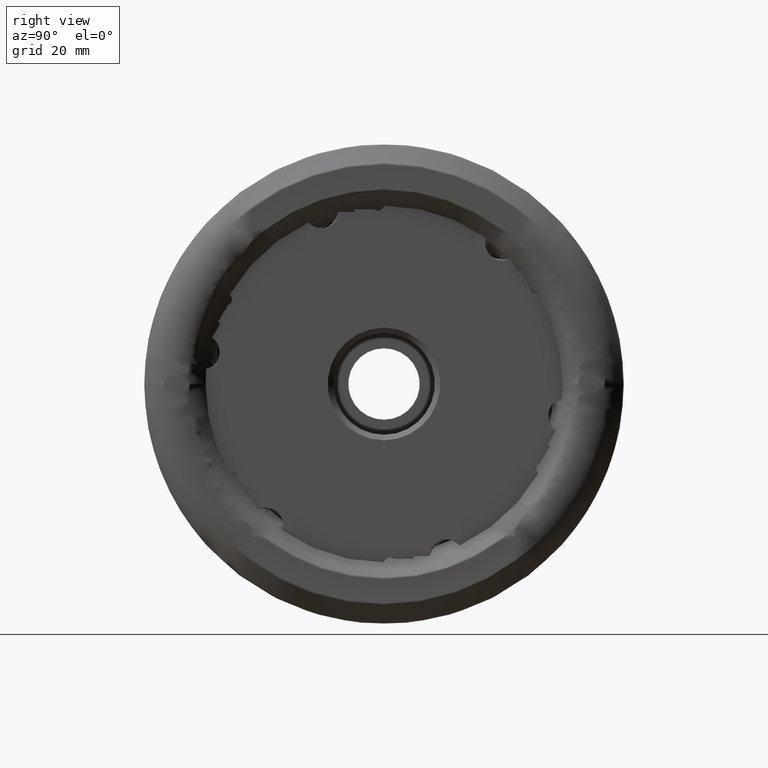
[diagram: clean part render]
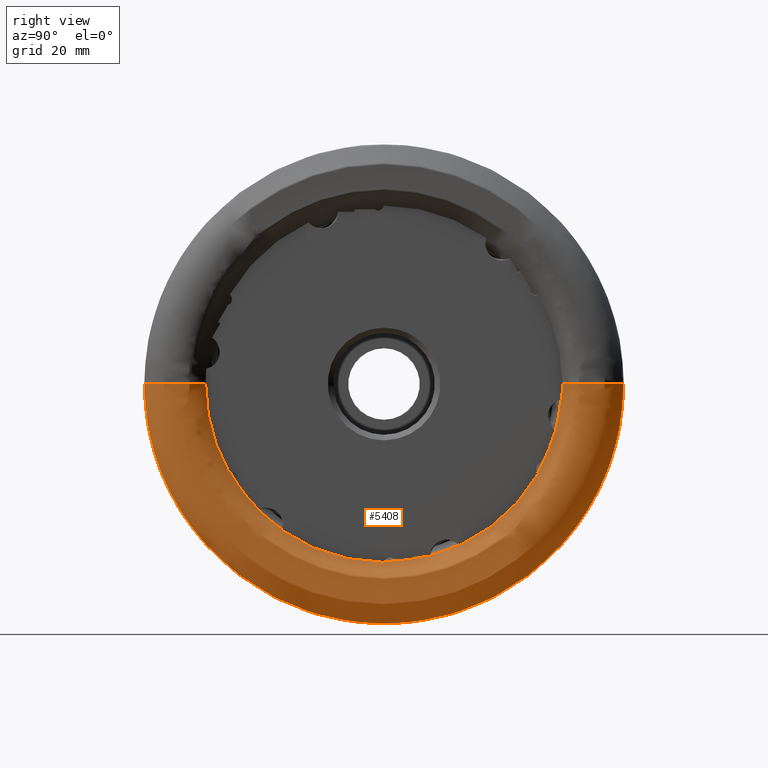
[diagram: same view with one face highlighted and labeled with its STEP entity id]
A machine part, right view. The second image highlights one B-rep face of the part: STEP entity #5408.
In plain terms, the highlighted face is a freeform B-spline surface patch.
Its self-contained STEP definition (entity closure, byte-faithful):
#10 = VERTEX_POINT ( 'NONE', #5694 ) ;
#36 = DIRECTION ( 'NONE',  ( 1.000000000000000000, 1.240934671431249000E-016, -0.0000000000000000000 ) ) ;
#52 = CARTESIAN_POINT ( 'NONE',  ( 0.9566347777337506100, -39.83070251475404400, 4.877854234248398000E-015 ) ) ;
#71 = CARTESIAN_POINT ( 'NONE',  ( 0.9566347777337506100, -39.83070251475405900, -79.66140502950807400 ) ) ;
#213 = DIRECTION ( 'NONE',  ( 1.000000000000000000, 1.240934671431249000E-016, -0.0000000000000000000 ) ) ;
#214 = CARTESIAN_POINT ( 'NONE',  ( 0.9070837471211687900, 38.36416174627036900, -76.72832349254078100 ) ) ;
#260 = CARTESIAN_POINT ( 'NONE',  ( 0.9070837471211686800, 38.36416174627039100, -9.396509576908272900E-015 ) ) ;
#322 = CARTESIAN_POINT ( 'NONE',  ( -1.999999996643915000, -18.61236828955423700, -26.58126153920262900 ) ) ;
#328 = CARTESIAN_POINT ( 'NONE',  ( -2.296816454764945900, 43.47378103524871300, -1.064800535833004800E-014 ) ) ;
#336 = VERTEX_POINT ( 'NONE', #3009 ) ;
#359 = VERTEX_POINT ( 'NONE', #7259 ) ;
#416 = CARTESIAN_POINT ( 'NONE',  ( 0.9070837471211783400, -38.36416174627039800, -76.72832349254078100 ) ) ;
#526 = DIRECTION ( 'NONE',  ( 1.000000000000000000, 1.240934671431249000E-016, -0.0000000000000000000 ) ) ;
#663 = CARTESIAN_POINT ( 'NONE',  ( 0.9453207758046466800, 39.64739750021772100, -79.29479500043548500 ) ) ;
#768 = VERTEX_POINT ( 'NONE', #322 ) ;
#807 = CARTESIAN_POINT ( 'NONE',  ( 0.9039909649084344500, -35.69343348057272900, 4.371184906256236600E-015 ) ) ;
#836 = CARTESIAN_POINT ( 'NONE',  ( 0.9453207758046566800, -39.64739750021774300, 4.855405844316443800E-015 ) ) ;
#864 = CARTESIAN_POINT ( 'NONE',  ( 0.9453207758046566800, -39.64739750021774300, -79.29479500043547100 ) ) ;
#884 = CARTESIAN_POINT ( 'NONE',  ( -2.115636703023241700, 32.20783618838257900, -2.837801387509671300 ) ) ;
#930 = CARTESIAN_POINT ( 'NONE',  ( -2.058685902072165100, -0.02581204637125488300, -32.39032692344218800 ) ) ;
#937 = CARTESIAN_POINT ( 'NONE',  ( -2.216751179971506500, 43.40091366678188200, -86.80182733356380700 ) ) ;
#952 = CARTESIAN_POINT ( 'NONE',  ( -2.115636703023234100, -18.56152618666913400, -26.47390364631241900 ) ) ;
#960 = CARTESIAN_POINT ( 'NONE',  ( -2.216751179971495800, -43.40091366678192500, -86.80182733356380700 ) ) ;
#977 = CARTESIAN_POINT ( 'NONE',  ( -2.130309960565580900, 7.989735657301582500, -31.31500000000000100 ) ) ;
#978 = CARTESIAN_POINT ( 'NONE',  ( -2.216751179971495800, -43.40091366678190400, 5.315079000209507800E-015 ) ) ;
#993 = CARTESIAN_POINT ( 'NONE',  ( -2.085864874017026200, -23.03453122305846900, -22.73302159313088200 ) ) ;
#1000 = CARTESIAN_POINT ( 'NONE',  ( 0.8548074041445944400, 35.29597486289871700, -70.59194972579746300 ) ) ;
#1027 = CARTESIAN_POINT ( 'NONE',  ( -2.085864874017027600, 8.170108592901927500, -31.31500000000000100 ) ) ;
#1028 = CARTESIAN_POINT ( 'NONE',  ( -2.238913193087222800, -43.42108330436629200, -86.84216660873254100 ) ) ;
#1056 = CARTESIAN_POINT ( 'NONE',  ( -2.238913193087222800, -43.42108330436627700, 5.317549068420273700E-015 ) ) ;
#1075 = CARTESIAN_POINT ( 'NONE',  ( -2.216751179971506900, 43.40091366678190400, -1.063015800041901600E-014 ) ) ;
#1176 = B_SPLINE_CURVE_WITH_KNOTS ( 'NONE', 3,
 ( #4332, #4295, #5299, #12376 ),
 .UNSPECIFIED., .F., .F.,
 ( 4, 4 ),
 ( 0.01118719593203510100, 0.01143581717694901400 ),
 .UNSPECIFIED. ) ;
#1223 = EDGE_CURVE ( 'NONE', #10, #359, #2014, .T. ) ;
#1232 = ORIENTED_EDGE ( 'NONE', *, *, #3341, .F. ) ;
#1287 = DIRECTION ( 'NONE',  ( 1.000000000000000000, 1.240934671431249000E-016, -0.0000000000000000000 ) ) ;
#1328 = DIRECTION ( 'NONE',  ( -1.202823614803471100E-016, 1.000000000000000000, 0.0000000000000000000 ) ) ;
#1375 = DIRECTION ( 'NONE',  ( -9.406230144874716800E-017, 1.000000000000000000, 0.0000000000000000000 ) ) ;
#1381 = CARTESIAN_POINT ( 'NONE',  ( -2.172427153740038800, -43.36057439161325500, 5.310138863787986400E-015 ) ) ;
#1408 = CARTESIAN_POINT ( 'NONE',  ( -2.115666113544674600, 43.29017476149636700, -1.060303479123921200E-014 ) ) ;
#1410 = ORIENTED_EDGE ( 'NONE', *, *, #8271, .F. ) ;
#1427 = CARTESIAN_POINT ( 'NONE',  ( -2.115666113544674600, 43.29017476149634500, -86.58034952299273400 ) ) ;
#1456 = CARTESIAN_POINT ( 'NONE',  ( -2.115666113544663900, -43.29017476149638100, -86.58034952299271900 ) ) ;
#1465 = CARTESIAN_POINT ( 'NONE',  ( 0.8835397823704794800, -35.36647280830863600, 4.331143772182707600E-015 ) ) ;
#1596 = CARTESIAN_POINT ( 'NONE',  ( 0.8548074041446031000, -35.29597486289873800, -70.59194972579746300 ) ) ;
#1618 = CARTESIAN_POINT ( 'NONE',  ( -1.168727253801108600, -33.29074528586039600, 4.076940465555877400E-015 ) ) ;
#1671 = CARTESIAN_POINT ( 'NONE',  ( -2.173361612823308900, 8.372504791819814300, -31.16908411303484500 ) ) ;
#1710 = AXIS2_PLACEMENT_3D ( 'NONE', #6602, #526, #7590 ) ;
#1725 = CARTESIAN_POINT ( 'NONE',  ( -2.173361612823304900, 0.01055472055838154800, -32.27399153393273000 ) ) ;
#1731 = CIRCLE ( 'NONE', #12373, 32.27399325981350800 ) ;
#1737 = CARTESIAN_POINT ( 'NONE',  ( -2.040045932943015400, 31.29467698191376700, -8.426029460869081300 ) ) ;
#1782 = CARTESIAN_POINT ( 'NONE',  ( -2.577552819400946900, -43.56709619691240900, 5.335430490569361100E-015 ) ) ;
#1816 = CARTESIAN_POINT ( 'NONE',  ( -0.3105545265762548200, -34.13717450754116100, 4.180598149259490400E-015 ) ) ;
#1827 = CARTESIAN_POINT ( 'NONE',  ( 0.5608650872399946200, -34.97555552801423300, 4.283270212578315200E-015 ) ) ;
#1851 = CARTESIAN_POINT ( 'NONE',  ( -2.216751179971495800, -43.40091366678190400, 5.315079000209507800E-015 ) ) ;
#1873 = CARTESIAN_POINT ( 'NONE',  ( -2.505128268006333600, -43.56132046345410200, 5.334723167220116000E-015 ) ) ;
#1891 = B_SPLINE_CURVE_WITH_KNOTS ( 'NONE', 3,
 ( #6622, #2610, #8612, #2662 ),
 .UNSPECIFIED., .F., .F.,
 ( 4, 4 ),
 ( 0.002580964855307790600, 0.003138057081315960600 ),
 .UNSPECIFIED. ) ;
#1898 = VERTEX_POINT ( 'NONE', #8345 ) ;
#1905 = CARTESIAN_POINT ( 'NONE',  ( -2.130309960565577300, -23.12471769085864200, -22.57681404874581000 ) ) ;
#1909 = CARTESIAN_POINT ( 'NONE',  ( 0.5831046343027630500, -34.99695189535054100, 4.285890511855493800E-015 ) ) ;
#1910 = CIRCLE ( 'NONE', #13131, 32.27399325981350800 ) ;
#1924 = CARTESIAN_POINT ( 'NONE',  ( 0.6275973331944351100, -35.03973048912578000, 4.291129378649381100E-015 ) ) ;
#1928 = CARTESIAN_POINT ( 'NONE',  ( -2.057848046419514400, 32.26715168158194300, -2.831916708134161600 ) ) ;
#1931 = CARTESIAN_POINT ( 'NONE',  ( 0.8548074041446032100, -35.29597486289873100, 4.322510263863436900E-015 ) ) ;
#1936 = CARTESIAN_POINT ( 'NONE',  ( 0.6993659851996642000, -35.09904283255668400, 4.298393045802639400E-015 ) ) ;
#1950 = CARTESIAN_POINT ( 'NONE',  ( 0.7405278463404041400, -35.14503532262221300, 4.304025501376995200E-015 ) ) ;
#1969 = CARTESIAN_POINT ( 'NONE',  ( -2.115666113544663500, -43.29017476149636700, 5.301517395619606000E-015 ) ) ;
#1973 = CARTESIAN_POINT ( 'NONE',  ( 0.7611087769107772700, -35.16803156765502100, 4.306841729164179900E-015 ) ) ;
#1995 = CARTESIAN_POINT ( 'NONE',  ( -2.074568843351942200, 43.24655262024898400, -1.059235044810910100E-014 ) ) ;
#2013 = CARTESIAN_POINT ( 'NONE',  ( -2.074568843351942200, 43.24655262024896300, -86.49310524049796800 ) ) ;
#2014 =( BOUNDED_CURVE ( )  B_SPLINE_CURVE ( 3, ( #2594, #1618, #1816, #1827, #1909, #1924, #1936, #1950, #1973, #7168, #12674, #12028, #1465, #4807, #4718, #3886, #3207, #9747, #807, #11809, #4921, #4114, #4577, #4450, #4488, #4500, #4370, #4465, #4418, #9038, #8958, #9023, #12153, #9114, #8995, #12919, #9251, #12172, #4659, #4670, #4746, #4765, #4781, #9682, #7924, #6631, #12492, #7848, #1851, #9734, #12329, #11715, #6423, #13061, #1873, #6540, #4948, #9294, #5901, #8450, #3088, #9277, #8394, #6929, #3445 ),
 .UNSPECIFIED., .F., .F. ) 
 B_SPLINE_CURVE_WITH_KNOTS ( ( 4, 3, 1, 1, 3, 1, 1, 1, 1, 3, 1, 1, 3, 3, 1, 1, 3, 1, 1, 1, 1, 1, 3, 1, 1, 3, 3, 1, 1, 3, 1, 1, 1, 1, 3, 1, 1, 3, 4 ),
 ( 0.006948015172080559100, 0.1060619996789288200, 0.1086058978124999100, 0.1111497959460709800, 0.1136936940796420700, 0.1159260198190421400, 0.1180840396008742700, 0.1201745462247572100, 0.1222050115043287600, 0.1241835888941176500, 0.1267306758894171900, 0.1292777628847167300, 0.1318248498800162800, 0.2381579842574154400, 0.2407050417863454700, 0.2432520993152755300, 0.2457991568442055600, 0.2474436612922787900, 0.2491232201490362900, 0.2508426460388543700, 0.2526064248684409800, 0.2544187128123238100, 0.2562833412953431400, 0.2588266357433448600, 0.2613699301913465800, 0.2639132246393483000, 0.3699500553359044200, 0.3724864601116609200, 0.3750228648874173700, 0.3775592696631738800, 0.3797930289838469800, 0.3819524403368253500, 0.3840443001699540600, 0.3860760842544970200, 0.3880559503102105100, 0.3906041079373214800, 0.3931522655644325000, 0.3957004231915434700, 0.4999999999999999400 ),
 .UNSPECIFIED. ) 
 CURVE ( )  GEOMETRIC_REPRESENTATION_ITEM ( )  RATIONAL_B_SPLINE_CURVE ( ( 0.9988871694074975500, 0.9939665742100125500, 0.9943375177408466700, 1.000000000000000000, 1.000000000000000000, 1.000000000000000000, 1.000000000000000000, 1.000000000000000000, 1.000000000000000000, 1.000000000000000000, 1.000000000000000000, 1.000000000000000000, 1.000000000000000000, 1.000000000000000000, 1.000000000000000000, 1.000000000000000000, 1.000000000000000000, 1.000000000000000000, 1.000000000000000000, 1.000000000000000000, 1.000000000000000000, 0.9939405706016597500, 0.9939405706016597500, 1.000000000000000000, 1.000000000000000000, 1.000000000000000000, 1.000000000000000000, 1.000000000000000000, 1.000000000000000000, 1.000000000000000000, 1.000000000000000000, 1.000000000000000000, 1.000000000000000000, 1.000000000000000000, 1.000000000000000000, 1.000000000000000000, 1.000000000000000000, 1.000000000000000000, 1.000000000000000000, 1.000000000000000000, 1.000000000000000000, 1.000000000000000000, 0.9939405706012080000, 0.9939405706012080000, 1.000000000000000000, 1.000000000000000000, 1.000000000000000000, 1.000000000000000000, 1.000000000000000000, 1.000000000000000000, 1.000000000000000000, 1.000000000000000000, 1.000000000000000000, 1.000000000000000000, 1.000000000000000000, 1.000000000000000000, 1.000000000000000000, 1.000000000000000000, 1.000000000000000000, 1.000000000000000000, 1.000000000000000000, 1.000000000000000000, 1.000000000000000000, 1.000000000000000000, 1.000000000000000000 ) ) 
 REPRESENTATION_ITEM ( '' )  );
#2086 = CARTESIAN_POINT ( 'NONE',  ( -1.999999996643917300, -1.360296397770974800E-015, 0.0000000000000000000 ) ) ;
#2116 = CARTESIAN_POINT ( 'NONE',  ( -0.3720145519541867000, 34.07804464865606800, -68.15608929731216400 ) ) ;
#2127 = DIRECTION ( 'NONE',  ( 1.000000000000000000, 1.240934671431249000E-016, -0.0000000000000000000 ) ) ;
#2140 = CARTESIAN_POINT ( 'NONE',  ( -0.3720145519541782600, -34.07804464865608900, -68.15608929731213500 ) ) ;
#2167 = CARTESIAN_POINT ( 'NONE',  ( -0.3720145519541782600, -34.07804464865607500, 4.173356830017726700E-015 ) ) ;
#2168 = CARTESIAN_POINT ( 'NONE',  ( -2.173361612823308000, 27.95537391018887500, -16.12785511083289300 ) ) ;
#2170 = DIRECTION ( 'NONE',  ( -1.193296455704711000E-016, 1.000000000000000000, 0.0000000000000000000 ) ) ;
#2182 = DIRECTION ( 'NONE',  ( 1.000000000000000000, 1.240934671431249000E-016, -0.0000000000000000000 ) ) ;
#2184 = CARTESIAN_POINT ( 'NONE',  ( -2.173361612823308000, 32.14827011732970900, -2.845939106462611600 ) ) ;
#2185 = CARTESIAN_POINT ( 'NONE',  ( 0.5831046343027543900, 34.99695189535054100, -8.571781023710987500E-015 ) ) ;
#2194 = VERTEX_POINT ( 'NONE', #8646 ) ;
#2210 = CARTESIAN_POINT ( 'NONE',  ( 0.5831046343027545000, 34.99695189535052700, -69.99390379070108300 ) ) ;
#2213 = CARTESIAN_POINT ( 'NONE',  ( -6.649685351810355800, -1.937291974618190100E-015, 0.0000000000000000000 ) ) ;
#2229 = CARTESIAN_POINT ( 'NONE',  ( 0.5831046343027630500, -34.99695189535054900, -69.99390379070106900 ) ) ;
#2259 = CARTESIAN_POINT ( 'NONE',  ( -2.173361612823300000, -32.27399325981350800, -64.54798651962700300 ) ) ;
#2354 = CARTESIAN_POINT ( 'NONE',  ( 0.8146882562172522700, 35.22789896921138800, -8.628346742666213900E-015 ) ) ;
#2410 = CARTESIAN_POINT ( 'NONE',  ( 0.8146882562172523800, 35.22789896921136700, -70.45579793842277600 ) ) ;
#2435 = CARTESIAN_POINT ( 'NONE',  ( -1.999999996643921300, 32.44971060520412500, 0.0000000000000000000 ) ) ;
#2451 = CARTESIAN_POINT ( 'NONE',  ( -1.999999996643924100, -0.03630592263622887900, -32.44969029500092700 ) ) ;
#2477 = CARTESIAN_POINT ( 'NONE',  ( 0.7405278463403954800, 35.14503532262221300, -8.608051002753990500E-015 ) ) ;
#2495 = CARTESIAN_POINT ( 'NONE',  ( 0.7405278463403954800, 35.14503532262219900, -70.29007064524442700 ) ) ;
#2518 = VERTEX_POINT ( 'NONE', #7435 ) ;
#2524 = CARTESIAN_POINT ( 'NONE',  ( 0.7405278463404042500, -35.14503532262222100, -70.29007064524441300 ) ) ;
#2547 = CARTESIAN_POINT ( 'NONE',  ( -2.172427153740049500, 43.36057439161325500, -1.062027772757597300E-014 ) ) ;
#2561 = CARTESIAN_POINT ( 'NONE',  ( -2.172427153740049500, 43.36057439161323400, -86.72114878322651100 ) ) ;
#2569 = CARTESIAN_POINT ( 'NONE',  ( -2.172427153740038800, -43.36057439161327000, -86.72114878322649600 ) ) ;
#2586 = AXIS2_PLACEMENT_3D ( 'NONE', #2213, #2182, #2170 ) ;
#2588 = CARTESIAN_POINT ( 'NONE',  ( -2.258430820492476300, -43.43884628777442500, 5.319724406497683600E-015 ) ) ;
#2594 = CARTESIAN_POINT ( 'NONE',  ( -1.999999996643913300, -32.44971060520412500, 3.973943422592115100E-015 ) ) ;
#2605 = CARTESIAN_POINT ( 'NONE',  ( -2.238913193087233500, 43.42108330436627700, -1.063509813684054700E-014 ) ) ;
#2610 = CARTESIAN_POINT ( 'NONE',  ( -2.130309960565583500, 31.11445334816051300, -8.738185951254399300 ) ) ;
#2612 = CARTESIAN_POINT ( 'NONE',  ( 0.8146882562172610400, -35.22789896921138800, -70.45579793842276200 ) ) ;
#2633 = ORIENTED_EDGE ( 'NONE', *, *, #10752, .F. ) ;
#2653 = CARTESIAN_POINT ( 'NONE',  ( -2.238913193087233500, 43.42108330436625600, -86.84216660873255500 ) ) ;
#2660 = EDGE_CURVE ( 'NONE', #8739, #6906, #1731, .T. ) ;
#2662 = CARTESIAN_POINT ( 'NONE',  ( -2.040045932943015400, 31.29467698191376700, -8.426029460869081300 ) ) ;
#2663 = CARTESIAN_POINT ( 'NONE',  ( -2.173361612823300000, -32.27399325981350800, 3.952424254133386300E-015 ) ) ;
#2816 = AXIS2_PLACEMENT_3D ( 'NONE', #12053, #5972, #13058 ) ;
#2828 = ORIENTED_EDGE ( 'NONE', *, *, #3464, .F. ) ;
#3009 = CARTESIAN_POINT ( 'NONE',  ( -2.173361612823301300, -18.53879062248480400, -26.41824905610053500 ) ) ;
#3028 = CARTESIAN_POINT ( 'NONE',  ( -2.258430820492487400, 43.43884628777442500, -1.063944881299536700E-014 ) ) ;
#3041 = CARTESIAN_POINT ( 'NONE',  ( -2.084880874853118500, 31.25568152358548000, -8.396239492571053700 ) ) ;
#3043 = CARTESIAN_POINT ( 'NONE',  ( -2.258430820492487400, 43.43884628777440300, -86.87769257554884900 ) ) ;
#3064 = CARTESIAN_POINT ( 'NONE',  ( -2.258430820492476800, -43.43884628777444600, -86.87769257554884900 ) ) ;
#3084 = CARTESIAN_POINT ( 'NONE',  ( 0.6206844191228158000, -40.46423594721977700, -80.92847189443952500 ) ) ;
#3088 = CARTESIAN_POINT ( 'NONE',  ( -2.824731765921470100, -43.57002744935876100, 5.335789465461953000E-015 ) ) ;
#3111 = CARTESIAN_POINT ( 'NONE',  ( 0.6206844191228158000, -40.46423594721977000, 4.955439703270596000E-015 ) ) ;
#3135 = CARTESIAN_POINT ( 'NONE',  ( -2.296816454764946300, 43.47378103524868500, -86.94756207049741200 ) ) ;
#3159 = CARTESIAN_POINT ( 'NONE',  ( -2.296816454764934800, -43.47378103524872700, -86.94756207049741200 ) ) ;
#3178 = CARTESIAN_POINT ( 'NONE',  ( -2.296816454764935200, -43.47378103524871300, 5.324002679165023900E-015 ) ) ;
#3189 = CIRCLE ( 'NONE', #7758, 32.44971060520412500 ) ;
#3193 = CIRCLE ( 'NONE', #10960, 32.27399325981350800 ) ;
#3198 = EDGE_CURVE ( 'NONE', #10, #3624, #3189, .T. ) ;
#3200 = CARTESIAN_POINT ( 'NONE',  ( -2.074568843351931600, -43.24655262024899800, -86.49310524049795400 ) ) ;
#3207 = CARTESIAN_POINT ( 'NONE',  ( 0.9075443833818094300, -35.54055850761132300, 4.352463121625544100E-015 ) ) ;
#3216 = CARTESIAN_POINT ( 'NONE',  ( -2.074568843351931600, -43.24655262024898400, 5.296175224054550300E-015 ) ) ;
#3219 = VERTEX_POINT ( 'NONE', #1737 ) ;
#3236 = CARTESIAN_POINT ( 'NONE',  ( -2.054012915583050400, 43.22474842479980600, -1.058700996047613500E-014 ) ) ;
#3255 = CARTESIAN_POINT ( 'NONE',  ( -2.363606188082681300, 43.51366212827546300, -87.02732425655096900 ) ) ;
#3285 = CARTESIAN_POINT ( 'NONE',  ( -2.173361612823304900, -1.381809441792210700E-015, 0.0000000000000000000 ) ) ;
#3290 = CARTESIAN_POINT ( 'NONE',  ( -2.363606188082670600, -43.51366212827549900, -87.02732425655095500 ) ) ;
#3334 = CARTESIAN_POINT ( 'NONE',  ( -2.363606188082670200, -43.51366212827548500, 5.328886704457196900E-015 ) ) ;
#3341 = EDGE_CURVE ( 'NONE', #6486, #7608, #5455, .T. ) ;
#3398 = CARTESIAN_POINT ( 'NONE',  ( 0.6424523548585843200, 40.44235995712749300, -9.905521334292254300E-015 ) ) ;
#3445 = CARTESIAN_POINT ( 'NONE',  ( -6.649685351810350500, -43.61171444908931200, 5.340894650540615700E-015 ) ) ;
#3464 = EDGE_CURVE ( 'NONE', #3547, #10123, #12825, .T. ) ;
#3547 = VERTEX_POINT ( 'NONE', #5722 ) ;
#3580 = CARTESIAN_POINT ( 'NONE',  ( -2.173361612823305300, 13.60947949484458000, -29.26418816256300200 ) ) ;
#3608 = VERTEX_POINT ( 'NONE', #5775 ) ;
#3624 = VERTEX_POINT ( 'NONE', #4401 ) ;
#3681 = CARTESIAN_POINT ( 'NONE',  ( -2.084880874853117600, 8.356484064967963500, -31.26633395830646800 ) ) ;
#3764 = CARTESIAN_POINT ( 'NONE',  ( -6.649685351810361100, 43.61171444908931200, -1.068178930108111900E-014 ) ) ;
#3779 = CARTESIAN_POINT ( 'NONE',  ( -6.649685351810360200, 43.61171444908929100, -87.22342889817862500 ) ) ;
#3814 = CARTESIAN_POINT ( 'NONE',  ( -6.649685351810349600, -43.61171444908932700, -87.22342889817861100 ) ) ;
#3841 = CARTESIAN_POINT ( 'NONE',  ( 0.6424523548585843200, 40.44235995712746500, -80.88471991425497300 ) ) ;
#3852 = EDGE_CURVE ( 'NONE', #359, #7608, #5666, .T. ) ;
#3886 = CARTESIAN_POINT ( 'NONE',  ( 0.9057173897032008100, -35.51004747578099300, 4.348726597878574500E-015 ) ) ;
#3941 = CARTESIAN_POINT ( 'NONE',  ( -6.649685351810350500, -43.61171444908931200, 5.340894650540558900E-015 ) ) ;
#3943 = ORIENTED_EDGE ( 'NONE', *, *, #12601, .F. ) ;
#4054 = CARTESIAN_POINT ( 'NONE',  ( -2.173361612823301300, -18.53879062248480400, -26.41824905610053500 ) ) ;
#4055 = CARTESIAN_POINT ( 'NONE',  ( -2.173361612823300900, -23.21505558831134400, -22.42034422050878800 ) ) ;
#4069 = CIRCLE ( 'NONE', #7032, 32.44971060520412500 ) ;
#4108 = CARTESIAN_POINT ( 'NONE',  ( -5.385000057930297700, -43.59793103072304600, 5.339206668622204800E-015 ) ) ;
#4114 = CARTESIAN_POINT ( 'NONE',  ( 0.8929679799096658100, -37.06888976255707700, 4.539629719566162000E-015 ) ) ;
#4146 = CIRCLE ( 'NONE', #2816, 32.27399325981350800 ) ;
#4161 = ORIENTED_EDGE ( 'NONE', *, *, #12622, .F. ) ;
#4184 = ORIENTED_EDGE ( 'NONE', *, *, #7493, .F. ) ;
#4230 = CARTESIAN_POINT ( 'NONE',  ( -1.999999996643926800, -28.12040910172609300, -16.19340329618996700 ) ) ;
#4271 = CARTESIAN_POINT ( 'NONE',  ( 0.6424523548585944200, -40.44235995712750100, -80.88471991425497300 ) ) ;
#4295 = CARTESIAN_POINT ( 'NONE',  ( -2.115636703023252400, 13.64631000171311100, -29.31170503382193400 ) ) ;
#4332 = CARTESIAN_POINT ( 'NONE',  ( -2.173361612823305300, 13.60947949484458000, -29.26418816256300200 ) ) ;
#4358 = EDGE_CURVE ( 'NONE', #2194, #10511, #12938, .T. ) ;
#4370 = CARTESIAN_POINT ( 'NONE',  ( 0.9566347777337506100, -39.83070251475404400, 4.877854234248398000E-015 ) ) ;
#4401 = CARTESIAN_POINT ( 'NONE',  ( -1.999999996643926800, -28.12040910172609300, -16.19340329618996700 ) ) ;
#4418 = CARTESIAN_POINT ( 'NONE',  ( 0.9538056854588438100, -39.92235498549285200, 4.889078424740820200E-015 ) ) ;
#4450 = CARTESIAN_POINT ( 'NONE',  ( 0.9453207758046566800, -39.64739750021774300, 4.855405844316443800E-015 ) ) ;
#4465 = CARTESIAN_POINT ( 'NONE',  ( 0.9547487162171470800, -39.89180416191319300, 4.885337027910004900E-015 ) ) ;
#4488 = CARTESIAN_POINT ( 'NONE',  ( 0.9462311390037269100, -39.67794931468506500, 4.859147362495998300E-015 ) ) ;
#4497 = CARTESIAN_POINT ( 'NONE',  ( 0.8166855757078590500, -40.26744136883088000, -80.53488273766173200 ) ) ;
#4500 = CARTESIAN_POINT ( 'NONE',  ( 0.9480797622451622200, -39.73905211236775900, 4.866630297056104300E-015 ) ) ;
#4539 = CARTESIAN_POINT ( 'NONE',  ( -4.120314764050252900, 43.58414761235704300, -1.067503737340776100E-014 ) ) ;
#4577 = CARTESIAN_POINT ( 'NONE',  ( 0.9070837471211783400, -38.36416174627039100, 4.698254788454136400E-015 ) ) ;
#4659 = CARTESIAN_POINT ( 'NONE',  ( 0.7559340955737312600, -40.33730463084997800, 4.939895100240213400E-015 ) ) ;
#4670 = CARTESIAN_POINT ( 'NONE',  ( 0.6860021360925954200, -40.39862181799931300, 4.947404289937728000E-015 ) ) ;
#4718 = CARTESIAN_POINT ( 'NONE',  ( 0.9042981808617061000, -35.48634650371747800, 4.345824065921148300E-015 ) ) ;
#4746 = CARTESIAN_POINT ( 'NONE',  ( 0.6424523548585944200, -40.44235995712749300, 4.952760667146127200E-015 ) ) ;
#4765 = CARTESIAN_POINT ( 'NONE',  ( 0.6206844191228158000, -40.46423594721977000, 4.955439703270596000E-015 ) ) ;
#4781 = CARTESIAN_POINT ( 'NONE',  ( -0.2924125983636914300, -41.38186550797807700, 5.067816913709161000E-015 ) ) ;
#4807 = CARTESIAN_POINT ( 'NONE',  ( 0.9014225446436556800, -35.43832300521907500, 4.339942883549155000E-015 ) ) ;
#4819 = CARTESIAN_POINT ( 'NONE',  ( -4.120314764050252000, 43.58414761235702200, -87.16829522471408600 ) ) ;
#4886 = ORIENTED_EDGE ( 'NONE', *, *, #12027, .F. ) ;
#4900 = CARTESIAN_POINT ( 'NONE',  ( -2.173361612823304900, -1.381809441792210700E-015, 0.0000000000000000000 ) ) ;
#4921 = CARTESIAN_POINT ( 'NONE',  ( 0.9032300746545961500, -35.78512737648878800, 4.382414169869730900E-015 ) ) ;
#4948 = CARTESIAN_POINT ( 'NONE',  ( -2.577552819400946900, -43.56709619691240900, 5.335430490569361100E-015 ) ) ;
#4972 = EDGE_CURVE ( 'NONE', #768, #9809, #7357, .T. ) ;
#5005 = EDGE_CURVE ( 'NONE', #10959, #10141, #1910, .T. ) ;
#5036 = CARTESIAN_POINT ( 'NONE',  ( -2.057848046419502400, -18.58608765143649300, -26.52821470994882700 ) ) ;
#5061 = CARTESIAN_POINT ( 'NONE',  ( -2.129320067902854300, 31.21728007684082200, -8.365476727485278400 ) ) ;
#5062 = CARTESIAN_POINT ( 'NONE',  ( -2.173361612823304900, 7.809059862396182400, -31.31500000000000100 ) ) ;
#5082 = CARTESIAN_POINT ( 'NONE',  ( -2.824731765921480800, 43.57002744935876100, 0.0000000000000000000 ) ) ;
#5144 = CARTESIAN_POINT ( 'NONE',  ( -2.173361612823308900, 8.372504791819814300, -31.16908411303484500 ) ) ;
#5156 = CARTESIAN_POINT ( 'NONE',  ( -2.855629470170207600, 43.57036419399084800, -87.14072838798173800 ) ) ;
#5176 = B_SPLINE_CURVE_WITH_KNOTS ( 'NONE', 3,
 ( #5999, #3041, #5061, #12124 ),
 .UNSPECIFIED., .F., .F.,
 ( 4, 4 ),
 ( 2.453269466693398700E-018, 0.0001967584014232372400 ),
 .UNSPECIFIED. ) ;
#5254 = CARTESIAN_POINT ( 'NONE',  ( -2.173361612823304900, 7.809059862396182400, -31.31500000000000100 ) ) ;
#5299 = CARTESIAN_POINT ( 'NONE',  ( -2.057848046419532100, 13.68106403014510900, -29.36013141808281200 ) ) ;
#5345 = CARTESIAN_POINT ( 'NONE',  ( -2.855629470170197000, -43.57036419399087600, -87.14072838798171000 ) ) ;
#5391 = CARTESIAN_POINT ( 'NONE',  ( -1.999999996643919900, 28.08410317909007900, -16.25628699881121300 ) ) ;
#5408 = ADVANCED_FACE ( 'NONE', ( #10356 ), #10528, .T. ) ;
#5423 = B_SPLINE_CURVE_WITH_KNOTS ( 'NONE', 3,
 ( #4055, #1905, #993, #8009 ),
 .UNSPECIFIED., .F., .F.,
 ( 4, 4 ),
 ( 0.002580964855307794500, 0.003138057081315958000 ),
 .UNSPECIFIED. ) ;
#5455 =( BOUNDED_CURVE ( )  B_SPLINE_CURVE ( 3, ( #7287, #7398, #7544, #11400, #11423, #11445, #11471, #11476, #11490, #11494, #11516, #11521, #11535, #11541, #11565, #11569, #11576, #11580, #11600, #11605, #11617, #11624, #11660, #11664, #11704, #11740, #11747, #11750, #11782, #11796, #11803, #11833, #11844, #11849, #11878, #11888, #11894, #11916, #11924, #11932, #11967, #11973, #11977, #11987, #11992, #12008, #12019, #12023, #12032, #12062, #12068, #12072, #12076, #12099, #9074, #9907, #11356, #11386, #11390, #7235, #5082, #7253, #7207, #12271, #5677 ),
 .UNSPECIFIED., .F., .F. ) 
 B_SPLINE_CURVE_WITH_KNOTS ( ( 4, 3, 1, 1, 3, 1, 1, 1, 1, 3, 1, 1, 3, 3, 1, 1, 3, 1, 1, 1, 1, 1, 3, 1, 1, 3, 3, 1, 1, 3, 1, 1, 1, 1, 3, 1, 1, 3, 4 ),
 ( 0.006948015172080776800, 0.1060619996789288200, 0.1086058978124999100, 0.1111497959460709800, 0.1136936940796420700, 0.1159260198190421400, 0.1180840396008742700, 0.1201745462247572100, 0.1222050115043287600, 0.1241835888941176500, 0.1267306758894171900, 0.1292777628847167300, 0.1318248498800162800, 0.2381579842574154400, 0.2407050417863454700, 0.2432520993152755300, 0.2457991568442055600, 0.2474436612922787900, 0.2491232201490362900, 0.2508426460388543700, 0.2526064248684409800, 0.2544187128123238100, 0.2562833412953431400, 0.2588266357433448600, 0.2613699301913465800, 0.2639132246393483000, 0.3699500553359044200, 0.3724864601116609200, 0.3750228648874174300, 0.3775592696631738800, 0.3797930289838469800, 0.3819524403368253500, 0.3840443001699540600, 0.3860760842544970200, 0.3880559503102105100, 0.3906041079373214800, 0.3931522655644325000, 0.3957004231915434700, 0.4999999999999999400 ),
 .UNSPECIFIED. ) 
 CURVE ( )  GEOMETRIC_REPRESENTATION_ITEM ( )  RATIONAL_B_SPLINE_CURVE ( ( 0.9988871694074974400, 0.9939665742100124400, 0.9943375177408466700, 1.000000000000000000, 1.000000000000000000, 1.000000000000000000, 1.000000000000000000, 1.000000000000000000, 1.000000000000000000, 1.000000000000000000, 1.000000000000000000, 1.000000000000000000, 1.000000000000000000, 1.000000000000000000, 1.000000000000000000, 1.000000000000000000, 1.000000000000000000, 1.000000000000000000, 1.000000000000000000, 1.000000000000000000, 1.000000000000000000, 0.9939405706016597500, 0.9939405706016597500, 1.000000000000000000, 1.000000000000000000, 1.000000000000000000, 1.000000000000000000, 1.000000000000000000, 1.000000000000000000, 1.000000000000000000, 1.000000000000000000, 1.000000000000000000, 1.000000000000000000, 1.000000000000000000, 1.000000000000000000, 1.000000000000000000, 1.000000000000000000, 1.000000000000000000, 1.000000000000000000, 1.000000000000000000, 1.000000000000000000, 1.000000000000000000, 0.9939405706012080000, 0.9939405706012080000, 1.000000000000000000, 1.000000000000000000, 1.000000000000000000, 1.000000000000000000, 1.000000000000000000, 1.000000000000000000, 1.000000000000000000, 1.000000000000000000, 1.000000000000000000, 1.000000000000000000, 1.000000000000000000, 1.000000000000000000, 1.000000000000000000, 1.000000000000000000, 1.000000000000000000, 1.000000000000000000, 1.000000000000000000, 1.000000000000000000, 1.000000000000000000, 1.000000000000000000, 1.000000000000000000 ) ) 
 REPRESENTATION_ITEM ( '' )  );
#5628 = CARTESIAN_POINT ( 'NONE',  ( -2.855629470170197000, -43.57036419399086200, 5.335830704785536800E-015 ) ) ;
#5640 = AXIS2_PLACEMENT_3D ( 'NONE', #6127, #36, #7126 ) ;
#5660 = DIRECTION ( 'NONE',  ( -9.406230144874716800E-017, 1.000000000000000000, 0.0000000000000000000 ) ) ;
#5666 = CIRCLE ( 'NONE', #2586, 43.61171444908931200 ) ;
#5673 = DIRECTION ( 'NONE',  ( 1.000000000000000000, 1.240934671431249000E-016, -0.0000000000000000000 ) ) ;
#5677 = CARTESIAN_POINT ( 'NONE',  ( -6.649685351810361100, 43.61171444908931200, 0.0000000000000000000 ) ) ;
#5687 = CARTESIAN_POINT ( 'NONE',  ( -2.173361612823304900, -1.381809441792210700E-015, 0.0000000000000000000 ) ) ;
#5694 = CARTESIAN_POINT ( 'NONE',  ( -1.999999996643913300, -32.44971060520412500, 3.973943422592115100E-015 ) ) ;
#5722 = CARTESIAN_POINT ( 'NONE',  ( -2.040045932942998100, -22.94449405710538400, -22.88897053913111900 ) ) ;
#5775 = CARTESIAN_POINT ( 'NONE',  ( -2.173361612823312000, 31.17947105049205800, -8.333740213494449400 ) ) ;
#5868 = DIRECTION ( 'NONE',  ( -9.406230144874716800E-017, 1.000000000000000000, 0.0000000000000000000 ) ) ;
#5901 = CARTESIAN_POINT ( 'NONE',  ( -2.669958063911731700, -43.57446535629505700, 5.336332952314397100E-015 ) ) ;
#5916 = CARTESIAN_POINT ( 'NONE',  ( -2.824731765921480800, 43.57002744935876100, -1.067157893092390600E-014 ) ) ;
#5941 = CARTESIAN_POINT ( 'NONE',  ( 0.8166855757078591600, -40.26744136883087300, 4.931339318219244600E-015 ) ) ;
#5972 = DIRECTION ( 'NONE',  ( 1.000000000000000000, 1.240934671431249000E-016, -0.0000000000000000000 ) ) ;
#5999 = CARTESIAN_POINT ( 'NONE',  ( -2.040045932943015400, 31.29467698191376700, -8.426029460869081300 ) ) ;
#6018 = CARTESIAN_POINT ( 'NONE',  ( 0.7964350823298206300, -40.29072912283719900, 4.934191245559561500E-015 ) ) ;
#6090 = CARTESIAN_POINT ( 'NONE',  ( -2.173361612823307500, 31.02411545070781400, -8.894655779491424500 ) ) ;
#6127 = CARTESIAN_POINT ( 'NONE',  ( -2.173361612823304900, -1.381809441792210700E-015, 0.0000000000000000000 ) ) ;
#6243 = CARTESIAN_POINT ( 'NONE',  ( -2.824731765921480800, 43.57002744935874000, -87.14005489871752300 ) ) ;
#6291 = CARTESIAN_POINT ( 'NONE',  ( -1.999999996643917300, -1.360296397770974800E-015, 0.0000000000000000000 ) ) ;
#6292 = CARTESIAN_POINT ( 'NONE',  ( -1.999999996643917300, -1.360296397770974800E-015, 0.0000000000000000000 ) ) ;
#6362 = ORIENTED_EDGE ( 'NONE', *, *, #2660, .F. ) ;
#6416 = DIRECTION ( 'NONE',  ( 1.000000000000000000, 1.240934671431249000E-016, -0.0000000000000000000 ) ) ;
#6423 = CARTESIAN_POINT ( 'NONE',  ( -2.363606188082670200, -43.51366212827548500, 5.328886704457196900E-015 ) ) ;
#6434 = CARTESIAN_POINT ( 'NONE',  ( -2.173361612823304000, -22.80696625867193800, -22.83534389954061800 ) ) ;
#6445 = CARTESIAN_POINT ( 'NONE',  ( -2.040045932942998100, -22.94449405710538400, -22.88897053913111900 ) ) ;
#6460 = CARTESIAN_POINT ( 'NONE',  ( -2.084880874853118900, -22.89919745861722000, -22.87009446573561200 ) ) ;
#6464 = CARTESIAN_POINT ( 'NONE',  ( -2.129320067902849900, -22.85335539918995100, -22.85221921985556600 ) ) ;
#6485 = CARTESIAN_POINT ( 'NONE',  ( -2.173361612823304000, -22.80696625867193800, -22.83534389954061800 ) ) ;
#6486 = VERTEX_POINT ( 'NONE', #2435 ) ;
#6500 = CARTESIAN_POINT ( 'NONE',  ( -2.824731765921469700, -43.57002744935877600, -87.14005489871752300 ) ) ;
#6540 = CARTESIAN_POINT ( 'NONE',  ( -2.553620494724448100, -43.56518763516486100, 5.335196759165850000E-015 ) ) ;
#6564 = CARTESIAN_POINT ( 'NONE',  ( -1.999999996643921300, 32.32623190236481700, -2.828152993744856000 ) ) ;
#6599 = DIRECTION ( 'NONE',  ( -1.202823614803471100E-016, 1.000000000000000000, 0.0000000000000000000 ) ) ;
#6602 = CARTESIAN_POINT ( 'NONE',  ( -2.173361612823304900, -1.381809441792210700E-015, 0.0000000000000000000 ) ) ;
#6605 = CIRCLE ( 'NONE', #1710, 32.27399325981350800 ) ;
#6622 = CARTESIAN_POINT ( 'NONE',  ( -2.173361612823307500, 31.02411545070781400, -8.894655779491424500 ) ) ;
#6631 = CARTESIAN_POINT ( 'NONE',  ( -2.074568843351931600, -43.24655262024898400, 5.296175224054550300E-015 ) ) ;
#6744 = CARTESIAN_POINT ( 'NONE',  ( -2.173361612823299500, -27.94481918963025200, -16.14613642310012100 ) ) ;
#6832 = EDGE_CURVE ( 'NONE', #2518, #3547, #5423, .T. ) ;
#6906 = VERTEX_POINT ( 'NONE', #6090 ) ;
#6915 = CARTESIAN_POINT ( 'NONE',  ( -2.173361612823304900, 0.01055472055838154800, -32.27399153393273000 ) ) ;
#6929 = CARTESIAN_POINT ( 'NONE',  ( -5.385000057930294100, -43.59793103072305300, 5.339206668622204800E-015 ) ) ;
#7032 = AXIS2_PLACEMENT_3D ( 'NONE', #6291, #213, #7289 ) ;
#7034 = ORIENTED_EDGE ( 'NONE', *, *, #1223, .T. ) ;
#7056 = B_SPLINE_CURVE_WITH_KNOTS ( 'NONE', 3,
 ( #8333, #9348, #11458, #5391 ),
 .UNSPECIFIED., .F., .F.,
 ( 4, 4 ),
 ( 0.002553788162835183700, 0.002806031705276490900 ),
 .UNSPECIFIED. ) ;
#7126 = DIRECTION ( 'NONE',  ( -9.406230144874716800E-017, 1.000000000000000000, 0.0000000000000000000 ) ) ;
#7139 = CARTESIAN_POINT ( 'NONE',  ( -2.116471646846764400, -28.00521571307682200, -16.15707734439173400 ) ) ;
#7168 = CARTESIAN_POINT ( 'NONE',  ( 0.7791689894824795900, -35.18821127100822100, 4.309313030076103800E-015 ) ) ;
#7207 = CARTESIAN_POINT ( 'NONE',  ( -4.120314764050252900, 43.58414761235703600, 0.0000000000000000000 ) ) ;
#7235 = CARTESIAN_POINT ( 'NONE',  ( -2.762936357424016400, 43.56935396009418300, 0.0000000000000000000 ) ) ;
#7253 = CARTESIAN_POINT ( 'NONE',  ( -2.855629470170207600, 43.57036419399086200, 0.0000000000000000000 ) ) ;
#7259 = CARTESIAN_POINT ( 'NONE',  ( -6.649685351810350500, -43.61171444908931200, 5.340894650540615700E-015 ) ) ;
#7287 = CARTESIAN_POINT ( 'NONE',  ( -1.999999996643921300, 32.44971060520412500, 0.0000000000000000000 ) ) ;
#7289 = DIRECTION ( 'NONE',  ( -1.202823614803471100E-016, 1.000000000000000000, 0.0000000000000000000 ) ) ;
#7357 = CIRCLE ( 'NONE', #10375, 32.44971060520412500 ) ;
#7369 = EDGE_CURVE ( 'NONE', #8262, #1898, #10485, .T. ) ;
#7398 = CARTESIAN_POINT ( 'NONE',  ( -1.168727253801113100, 33.29074528586039600, 0.0000000000000000000 ) ) ;
#7399 = CARTESIAN_POINT ( 'NONE',  ( 0.6206844191228057000, 40.46423594721974100, -80.92847189443952500 ) ) ;
#7415 = CARTESIAN_POINT ( 'NONE',  ( -2.824731765921470100, -43.57002744935876100, 5.335789465461953000E-015 ) ) ;
#7435 = CARTESIAN_POINT ( 'NONE',  ( -2.173361612823300900, -23.21505558831134400, -22.42034422050878800 ) ) ;
#7485 = CARTESIAN_POINT ( 'NONE',  ( -2.762936357424016400, 43.56935396009418300, -1.067141397362947900E-014 ) ) ;
#7486 = VERTEX_POINT ( 'NONE', #2184 ) ;
#7493 = EDGE_CURVE ( 'NONE', #12881, #6486, #4069, .T. ) ;
#7505 = CARTESIAN_POINT ( 'NONE',  ( -2.762936357424016400, 43.56935396009416900, -87.13870792018838100 ) ) ;
#7544 = CARTESIAN_POINT ( 'NONE',  ( -0.3105545265762613700, 34.13717450754115400, 0.0000000000000000000 ) ) ;
#7590 = DIRECTION ( 'NONE',  ( -9.406230144874716800E-017, 1.000000000000000000, 0.0000000000000000000 ) ) ;
#7608 = VERTEX_POINT ( 'NONE', #9376 ) ;
#7660 = CARTESIAN_POINT ( 'NONE',  ( -2.129320067902857000, 8.363924677650576500, -31.21769594734063700 ) ) ;
#7758 = AXIS2_PLACEMENT_3D ( 'NONE', #2086, #2127, #1328 ) ;
#7848 = CARTESIAN_POINT ( 'NONE',  ( -2.172427153740038800, -43.36057439161325500, 5.310138863787986400E-015 ) ) ;
#7924 = CARTESIAN_POINT ( 'NONE',  ( -2.054012915583039300, -43.22474842479980600, 5.293504980238067600E-015 ) ) ;
#7937 = EDGE_CURVE ( 'NONE', #1898, #10959, #8543, .T. ) ;
#7950 = CARTESIAN_POINT ( 'NONE',  ( -1.999999996643924100, -0.03630592263622887900, -32.44969029500092700 ) ) ;
#7997 = CARTESIAN_POINT ( 'NONE',  ( 0.8166855757078491700, 40.26744136883087300, -9.862678636438489200E-015 ) ) ;
#8009 = CARTESIAN_POINT ( 'NONE',  ( -2.040045932942998100, -22.94449405710538400, -22.88897053913111900 ) ) ;
#8033 = CARTESIAN_POINT ( 'NONE',  ( -2.040045932943011800, 8.350182924808084600, -31.31500000000000100 ) ) ;
#8136 = CARTESIAN_POINT ( 'NONE',  ( -2.669958063911731700, -43.57446535629505700, 5.336332952314397100E-015 ) ) ;
#8138 = CARTESIAN_POINT ( 'NONE',  ( -2.173361612823299500, -27.94481918963025200, -16.14613642310012100 ) ) ;
#8157 = CARTESIAN_POINT ( 'NONE',  ( 0.8166855757078491700, 40.26744136883085900, -80.53488273766176100 ) ) ;
#8180 = CARTESIAN_POINT ( 'NONE',  ( 0.7611087769107686100, 35.16803156765500700, -70.33606313531005600 ) ) ;
#8198 = CARTESIAN_POINT ( 'NONE',  ( 0.7611087769107773800, -35.16803156765502800, -70.33606313531002700 ) ) ;
#8214 = CARTESIAN_POINT ( 'NONE',  ( -2.608354567571221000, 43.56955258337340800, -1.067146262230210800E-014 ) ) ;
#8262 = VERTEX_POINT ( 'NONE', #5254 ) ;
#8263 = CARTESIAN_POINT ( 'NONE',  ( 0.7611087769107772700, -35.16803156765502100, 4.306841729164179900E-015 ) ) ;
#8271 = EDGE_CURVE ( 'NONE', #10141, #2194, #1176, .T. ) ;
#8283 = CARTESIAN_POINT ( 'NONE',  ( -4.120314764050241300, -43.58414761235705700, -87.16829522471407200 ) ) ;
#8304 = CARTESIAN_POINT ( 'NONE',  ( 0.9070837471211783400, -38.36416174627039100, 4.698254788454136400E-015 ) ) ;
#8323 = CARTESIAN_POINT ( 'NONE',  ( 0.8929679799096564800, 37.06888976255707700, -9.079259439132324000E-015 ) ) ;
#8333 = CARTESIAN_POINT ( 'NONE',  ( -2.173361612823308000, 27.95537391018887500, -16.12785511083289300 ) ) ;
#8344 = CARTESIAN_POINT ( 'NONE',  ( 0.8929679799096564800, 37.06888976255706300, -74.13777952511415500 ) ) ;
#8345 = CARTESIAN_POINT ( 'NONE',  ( -2.040045932943011800, 8.350182924808084600, -31.31500000000000100 ) ) ;
#8355 = CARTESIAN_POINT ( 'NONE',  ( -4.120314764050242200, -43.58414761235704300, 5.337518686703880600E-015 ) ) ;
#8361 = ORIENTED_EDGE ( 'NONE', *, *, #6832, .F. ) ;
#8380 = CARTESIAN_POINT ( 'NONE',  ( -2.855629470170207600, 43.57036419399086200, -1.067166140957107400E-014 ) ) ;
#8394 = CARTESIAN_POINT ( 'NONE',  ( -4.120314764050242200, -43.58414761235703600, 5.337518686703880600E-015 ) ) ;
#8401 = CARTESIAN_POINT ( 'NONE',  ( 0.8315323217374155400, 40.25036784065166300, -9.858496828111524700E-015 ) ) ;
#8450 = CARTESIAN_POINT ( 'NONE',  ( -2.762936357424005300, -43.56935396009418300, 5.335706986814739600E-015 ) ) ;
#8473 = CARTESIAN_POINT ( 'NONE',  ( -2.505128268006344200, 43.56132046345410200, -1.066944633444023200E-014 ) ) ;
#8486 = CARTESIAN_POINT ( 'NONE',  ( -2.505128268006344200, 43.56132046345408100, -87.12264092690820400 ) ) ;
#8501 = CARTESIAN_POINT ( 'NONE',  ( -2.553620494724458700, 43.56518763516486100, -1.067039351833170000E-014 ) ) ;
#8512 = CARTESIAN_POINT ( 'NONE',  ( -2.505128268006333100, -43.56132046345411600, -87.12264092690819000 ) ) ;
#8543 = B_SPLINE_CURVE_WITH_KNOTS ( 'NONE', 3,
 ( #8603, #3681, #7660, #1671 ),
 .UNSPECIFIED., .F., .F.,
 ( 4, 4 ),
 ( 1.131732585311549900E-017, 0.0001967584014232214300 ),
 .UNSPECIFIED. ) ;
#8601 = CARTESIAN_POINT ( 'NONE',  ( 0.6993659851996555400, 35.09904283255668400, -8.596786091605278800E-015 ) ) ;
#8603 = CARTESIAN_POINT ( 'NONE',  ( -2.040045932943011800, 8.350182924808084600, -31.31500000000000100 ) ) ;
#8612 = CARTESIAN_POINT ( 'NONE',  ( -2.085864874017040000, 31.20463981596066500, -8.581978406869316300 ) ) ;
#8627 = CARTESIAN_POINT ( 'NONE',  ( 0.5608650872399859600, 34.97555552801423300, -8.566540425156630400E-015 ) ) ;
#8646 = CARTESIAN_POINT ( 'NONE',  ( -1.999999996643955900, 13.71386361281024300, -29.40941453294732700 ) ) ;
#8657 = CARTESIAN_POINT ( 'NONE',  ( 0.5831046343027630500, -34.99695189535054100, 4.285890511855493800E-015 ) ) ;
#8669 = CARTESIAN_POINT ( 'NONE',  ( 0.7405278463404041400, -35.14503532262221300, 4.304025501376995200E-015 ) ) ;
#8686 = CARTESIAN_POINT ( 'NONE',  ( -2.608354567571221400, 43.56955258337338700, -87.13910516674681600 ) ) ;
#8699 = CARTESIAN_POINT ( 'NONE',  ( -2.762936357424005300, -43.56935396009419000, -87.13870792018835200 ) ) ;
#8717 = CARTESIAN_POINT ( 'NONE',  ( -2.762936357424005300, -43.56935396009418300, 5.335706986814739600E-015 ) ) ;
#8732 = EDGE_CURVE ( 'NONE', #10282, #3624, #12359, .T. ) ;
#8735 = CARTESIAN_POINT ( 'NONE',  ( -2.669958063911742800, 43.57446535629505700, -1.067266590462879400E-014 ) ) ;
#8739 = VERTEX_POINT ( 'NONE', #2168 ) ;
#8758 = CARTESIAN_POINT ( 'NONE',  ( 0.6993659851996556500, 35.09904283255667700, -70.19808566511338200 ) ) ;
#8782 = CARTESIAN_POINT ( 'NONE',  ( -2.669958063911742800, 43.57446535629503600, -87.14893071259011500 ) ) ;
#8859 = CARTESIAN_POINT ( 'NONE',  ( -2.669958063911731700, -43.57446535629507200, -87.14893071259010100 ) ) ;
#8883 = CARTESIAN_POINT ( 'NONE',  ( -2.577552819400958000, 43.56709619691238800, -87.13419239382481900 ) ) ;
#8898 = CARTESIAN_POINT ( 'NONE',  ( -1.999999996643921300, 32.32623190236481700, -2.828152993744856000 ) ) ;
#8904 = CARTESIAN_POINT ( 'NONE',  ( -2.608354567571210300, -43.56955258337342200, -87.13910516674680200 ) ) ;
#8931 = CARTESIAN_POINT ( 'NONE',  ( -2.608354567571210300, -43.56955258337340800, 5.335731311151054000E-015 ) ) ;
#8952 = CARTESIAN_POINT ( 'NONE',  ( 0.5608650872399859600, 34.97555552801421900, -69.95111105602846600 ) ) ;
#8958 = CARTESIAN_POINT ( 'NONE',  ( 0.9519661069795631900, -39.98195074850108500, 4.896376800781897500E-015 ) ) ;
#8977 = CARTESIAN_POINT ( 'NONE',  ( -2.577552819400958000, 43.56709619691240900, -1.067086098113872200E-014 ) ) ;
#8995 = CARTESIAN_POINT ( 'NONE',  ( 0.8608090623103142900, -40.21670004205335400, 4.925125297876986500E-015 ) ) ;
#9023 = CARTESIAN_POINT ( 'NONE',  ( 0.9407705459101788300, -40.04198539069844300, 4.903728924022393000E-015 ) ) ;
#9038 = CARTESIAN_POINT ( 'NONE',  ( 0.9531968188513616500, -39.94208008580887500, 4.891494052837308000E-015 ) ) ;
#9074 = CARTESIAN_POINT ( 'NONE',  ( -2.505128268006344200, 43.56132046345410200, 0.0000000000000000000 ) ) ;
#9096 = CARTESIAN_POINT ( 'NONE',  ( -2.577552819400947400, -43.56709619691242400, -87.13419239382480400 ) ) ;
#9114 = CARTESIAN_POINT ( 'NONE',  ( 0.8954357772688645900, -40.16022547929682700, 4.918209158625683700E-015 ) ) ;
#9220 = DIRECTION ( 'NONE',  ( -1.202823614803471100E-016, 1.000000000000000000, 0.0000000000000000000 ) ) ;
#9221 = CARTESIAN_POINT ( 'NONE',  ( -5.385000057930308300, 43.59793103072304600, -1.067841333724441000E-014 ) ) ;
#9224 = DIRECTION ( 'NONE',  ( 1.000000000000000000, 1.240934671431249000E-016, -0.0000000000000000000 ) ) ;
#9241 = CARTESIAN_POINT ( 'NONE',  ( -1.999999996643917300, -1.360296397770974800E-015, 0.0000000000000000000 ) ) ;
#9244 = CARTESIAN_POINT ( 'NONE',  ( -5.385000057930308300, 43.59793103072303200, -87.19586206144610700 ) ) ;
#9251 = CARTESIAN_POINT ( 'NONE',  ( 0.8166855757078591600, -40.26744136883087300, 4.931339318219244600E-015 ) ) ;
#9271 = CARTESIAN_POINT ( 'NONE',  ( -5.385000057930297700, -43.59793103072306100, -87.19586206144607800 ) ) ;
#9277 = CARTESIAN_POINT ( 'NONE',  ( -2.855629470170197000, -43.57036419399086200, 5.335830704785536800E-015 ) ) ;
#9289 = CARTESIAN_POINT ( 'NONE',  ( -2.553620494724458700, 43.56518763516484700, -87.13037527032973600 ) ) ;
#9294 = CARTESIAN_POINT ( 'NONE',  ( -2.608354567571210300, -43.56955258337340800, 5.335731311151054000E-015 ) ) ;
#9309 = CARTESIAN_POINT ( 'NONE',  ( -2.553620494724448100, -43.56518763516488200, -87.13037527032972200 ) ) ;
#9334 = CARTESIAN_POINT ( 'NONE',  ( -2.553620494724448100, -43.56518763516486100, 5.335196759165850000E-015 ) ) ;
#9348 = CARTESIAN_POINT ( 'NONE',  ( -2.116471646846770600, 27.99504728769151600, -16.17468957379206200 ) ) ;
#9357 = CARTESIAN_POINT ( 'NONE',  ( -2.505128268006333600, -43.56132046345410200, 5.334723167220116000E-015 ) ) ;
#9376 = CARTESIAN_POINT ( 'NONE',  ( -6.649685351810361100, 43.61171444908931200, 0.0000000000000000000 ) ) ;
#9377 = CARTESIAN_POINT ( 'NONE',  ( 0.5608650872399947300, -34.97555552801424000, -69.95111105602846600 ) ) ;
#9395 = EDGE_CURVE ( 'NONE', #8739, #10511, #7056, .T. ) ;
#9400 = CARTESIAN_POINT ( 'NONE',  ( -2.433402551255820200, 43.54266719841219700, -1.066487760217478800E-014 ) ) ;
#9420 = CARTESIAN_POINT ( 'NONE',  ( -2.433402551255820200, 43.54266719841217500, -87.08533439682439300 ) ) ;
#9483 = CARTESIAN_POINT ( 'NONE',  ( -2.433402551255809500, -43.54266719841221100, -87.08533439682437900 ) ) ;
#9502 = CARTESIAN_POINT ( 'NONE',  ( -2.433402551255809500, -43.54266719841219700, 5.332438801087394000E-015 ) ) ;
#9520 = CARTESIAN_POINT ( 'NONE',  ( -2.363606188082681300, 43.51366212827548500, -1.065777340891439400E-014 ) ) ;
#9546 = CARTESIAN_POINT ( 'NONE',  ( 0.5608650872399946200, -34.97555552801423300, 4.283270212578315200E-015 ) ) ;
#9565 = ORIENTED_EDGE ( 'NONE', *, *, #4358, .F. ) ;
#9682 = CARTESIAN_POINT ( 'NONE',  ( -1.189413691392826800, -42.30764603558385800, 5.181192329693697600E-015 ) ) ;
#9718 = B_SPLINE_CURVE_WITH_KNOTS ( 'NONE', 3,
 ( #4054, #952, #5036, #12090 ),
 .UNSPECIFIED., .F., .F.,
 ( 4, 4 ),
 ( 0.01118719593203510200, 0.01143581717694907400 ),
 .UNSPECIFIED. ) ;
#9734 = CARTESIAN_POINT ( 'NONE',  ( -2.238913193087222800, -43.42108330436627700, 5.317549068420273700E-015 ) ) ;
#9747 = CARTESIAN_POINT ( 'NONE',  ( 0.9111983707390245400, -35.60158057127206600, 4.359936169119493500E-015 ) ) ;
#9765 = CARTESIAN_POINT ( 'NONE',  ( 0.7791689894824795900, -35.18821127100822800, -70.37642254201642800 ) ) ;
#9785 = CARTESIAN_POINT ( 'NONE',  ( 0.7791689894824795900, -35.18821127100822100, 4.309313030076103800E-015 ) ) ;
#9809 = VERTEX_POINT ( 'NONE', #2451 ) ;
#9850 = ORIENTED_EDGE ( 'NONE', *, *, #12060, .F. ) ;
#9864 = CARTESIAN_POINT ( 'NONE',  ( 0.7611087769107685000, 35.16803156765502100, -8.613683458328359700E-015 ) ) ;
#9883 = CARTESIAN_POINT ( 'NONE',  ( 0.8146882562172611500, -35.22789896921138800, 4.314173371333106900E-015 ) ) ;
#9884 = ORIENTED_EDGE ( 'NONE', *, *, #9395, .T. ) ;
#9907 = CARTESIAN_POINT ( 'NONE',  ( -2.553620494724458700, 43.56518763516486100, 0.0000000000000000000 ) ) ;
#9908 = CARTESIAN_POINT ( 'NONE',  ( 0.7791689894824708200, 35.18821127100822100, -8.618626060152207700E-015 ) ) ;
#9928 = CARTESIAN_POINT ( 'NONE',  ( 0.7791689894824707100, 35.18821127100820700, -70.37642254201644200 ) ) ;
#9951 = CARTESIAN_POINT ( 'NONE',  ( -1.189413691392836800, 42.30764603558385800, -1.036238465938739500E-014 ) ) ;
#9979 = CARTESIAN_POINT ( 'NONE',  ( -1.189413691392837300, 42.30764603558384400, -84.61529207116773000 ) ) ;
#10003 = CARTESIAN_POINT ( 'NONE',  ( -1.189413691392826600, -42.30764603558386500, -84.61529207116770100 ) ) ;
#10021 = CARTESIAN_POINT ( 'NONE',  ( -0.3720145519541867000, 34.07804464865607500, -8.346713660035453400E-015 ) ) ;
#10063 = CARTESIAN_POINT ( 'NONE',  ( -2.054012915583050400, 43.22474842479978500, -86.44949684959961200 ) ) ;
#10078 = CARTESIAN_POINT ( 'NONE',  ( -2.054012915583039800, -43.22474842479982000, -86.44949684959959800 ) ) ;
#10094 = CARTESIAN_POINT ( 'NONE',  ( -2.054012915583039300, -43.22474842479980600, 5.293504980238067600E-015 ) ) ;
#10114 = CARTESIAN_POINT ( 'NONE',  ( -0.2924125983636914300, -41.38186550797809100, -82.76373101595613900 ) ) ;
#10123 = VERTEX_POINT ( 'NONE', #6434 ) ;
#10138 = CARTESIAN_POINT ( 'NONE',  ( -0.2924125983636914300, -41.38186550797807700, 5.067816913709161800E-015 ) ) ;
#10141 = VERTEX_POINT ( 'NONE', #3580 ) ;
#10161 = CARTESIAN_POINT ( 'NONE',  ( 0.6206844191228057000, 40.46423594721977000, -9.910879406541192000E-015 ) ) ;
#10162 = CARTESIAN_POINT ( 'NONE',  ( -2.058685902072167300, -28.06375197576943500, -16.17280957384025400 ) ) ;
#10172 = ORIENTED_EDGE ( 'NONE', *, *, #4972, .F. ) ;
#10181 = CARTESIAN_POINT ( 'NONE',  ( -1.189413691392826800, -42.30764603558385800, 5.181192329693697600E-015 ) ) ;
#10208 = CARTESIAN_POINT ( 'NONE',  ( -0.2924125983637015900, 41.38186550797807700, -1.013563382741832400E-014 ) ) ;
#10224 = CARTESIAN_POINT ( 'NONE',  ( -0.2924125983637017000, 41.38186550797805600, -82.76373101595615400 ) ) ;
#10231 = ORIENTED_EDGE ( 'NONE', *, *, #12363, .F. ) ;
#10245 = CARTESIAN_POINT ( 'NONE',  ( 0.9042981808616974400, 35.48634650371745600, -70.97269300743495500 ) ) ;
#10282 = VERTEX_POINT ( 'NONE', #6744 ) ;
#10303 = CARTESIAN_POINT ( 'NONE',  ( 0.9042981808617062100, -35.48634650371749200, -70.97269300743495500 ) ) ;
#10319 = CARTESIAN_POINT ( 'NONE',  ( 0.9042981808617061000, -35.48634650371747800, 4.345824065921148300E-015 ) ) ;
#10356 = FACE_OUTER_BOUND ( 'NONE', #12834, .T. ) ;
#10368 = CARTESIAN_POINT ( 'NONE',  ( 0.9014225446436470200, 35.43832300521905400, -70.87664601043815100 ) ) ;
#10375 = AXIS2_PLACEMENT_3D ( 'NONE', #6292, #6416, #6599 ) ;
#10396 = CARTESIAN_POINT ( 'NONE',  ( 0.9014225446436557900, -35.43832300521908300, -70.87664601043813700 ) ) ;
#10434 = CARTESIAN_POINT ( 'NONE',  ( 0.9014225446436469100, 35.43832300521907500, -8.679885767098309900E-015 ) ) ;
#10452 = CARTESIAN_POINT ( 'NONE',  ( 0.6860021360925954200, -40.39862181799932000, -80.79724363599859800 ) ) ;
#10478 = CARTESIAN_POINT ( 'NONE',  ( 0.6860021360925954200, -40.39862181799931300, 4.947404289937728000E-015 ) ) ;
#10485 = B_SPLINE_CURVE_WITH_KNOTS ( 'NONE', 3,
 ( #5062, #977, #1027, #8033 ),
 .UNSPECIFIED., .F., .F.,
 ( 4, 4 ),
 ( 0.002580964855307789700, 0.003138057081315954100 ),
 .UNSPECIFIED. ) ;
#10497 = CARTESIAN_POINT ( 'NONE',  ( 0.7559340955737212700, 40.33730463084997800, -9.879790200480426900E-015 ) ) ;
#10511 = VERTEX_POINT ( 'NONE', #12018 ) ;
#10520 = CARTESIAN_POINT ( 'NONE',  ( 0.6424523548585944200, -40.44235995712749300, 4.952760667146127200E-015 ) ) ;
#10528 =( BOUNDED_SURFACE ( )  B_SPLINE_SURFACE ( 3, 3, ( 
 ( #2663, #2259, #12149, #12079 ),
 ( #12063, #12248, #12228, #12167 ),
 ( #2167, #2140, #2116, #10021 ),
 ( #9546, #9377, #8952, #8627 ),
 ( #8657, #2229, #2210, #2185 ),
 ( #12320, #12291, #12272, #12375 ),
 ( #12356, #12339, #8758, #8601 ),
 ( #8669, #2524, #2495, #2477 ),
 ( #8263, #8198, #8180, #9864 ),
 ( #9785, #9765, #9928, #9908 ),
 ( #9883, #2612, #2410, #2354 ),
 ( #1931, #1596, #1000, #11594 ),
 ( #11578, #11567, #11643, #11620 ),
 ( #11602, #10396, #10368, #10434 ),
 ( #10319, #10303, #10245, #12443 ),
 ( #12418, #12394, #12537, #12502 ),
 ( #12461, #11692, #11662, #11648 ),
 ( #11035, #11171, #10757, #11737 ),
 ( #11725, #11705, #11075, #10868 ),
 ( #10916, #12733, #12655, #12608 ),
 ( #12596, #12580, #12565, #11517 ),
 ( #11424, #11402, #8344, #8323 ),
 ( #8304, #416, #214, #260 ),
 ( #836, #864, #663, #11777 ),
 ( #11764, #11748, #11865, #11829 ),
 ( #11821, #13120, #13065, #13041 ),
 ( #52, #71, #13140, #12956 ),
 ( #12913, #12862, #13017, #13002 ),
 ( #12981, #11304, #11282, #11257 ),
 ( #11387, #11357, #11334, #11119 ),
 ( #11096, #11056, #11239, #11216 ),
 ( #11147, #10933, #10890, #10822 ),
 ( #11015, #10988, #10962, #11950 ),
 ( #11909, #11889, #12037, #12020 ),
 ( #11995, #10730, #10717, #10686 ),
 ( #10797, #10770, #10748, #8401 ),
 ( #5941, #4497, #8157, #7997 ),
 ( #6018, #10617, #10602, #10585 ),
 ( #10666, #10657, #10638, #10497 ),
 ( #10478, #10452, #10575, #10533 ),
 ( #10520, #4271, #3841, #3398 ),
 ( #3111, #3084, #7399, #10161 ),
 ( #10138, #10114, #10224, #10208 ),
 ( #10181, #10003, #9979, #9951 ),
 ( #10094, #10078, #10063, #3236 ),
 ( #3216, #3200, #2013, #1995 ),
 ( #1969, #1456, #1427, #1408 ),
 ( #1381, #2569, #2561, #2547 ),
 ( #978, #960, #937, #1075 ),
 ( #1056, #1028, #2653, #2605 ),
 ( #2588, #3064, #3043, #3028 ),
 ( #3178, #3159, #3135, #328 ),
 ( #3334, #3290, #3255, #9520 ),
 ( #9502, #9483, #9420, #9400 ),
 ( #9357, #8512, #8486, #8473 ),
 ( #9334, #9309, #9289, #8501 ),
 ( #1782, #9096, #8883, #8977 ),
 ( #8931, #8904, #8686, #8214 ),
 ( #8136, #8859, #8782, #8735 ),
 ( #8717, #8699, #7505, #7485 ),
 ( #7415, #6500, #6243, #5916 ),
 ( #5628, #5345, #5156, #8380 ),
 ( #8355, #8283, #4819, #4539 ),
 ( #4108, #9271, #9244, #9221 ),
 ( #3941, #3814, #3779, #3764 ) ),
 .UNSPECIFIED., .F., .F., .F. ) 
 B_SPLINE_SURFACE_WITH_KNOTS ( ( 4, 3, 1, 1, 3, 1, 1, 1, 1, 3, 1, 1, 3, 3, 1, 1, 3, 1, 1, 1, 1, 1, 3, 1, 1, 3, 3, 1, 1, 3, 1, 1, 1, 1, 3, 1, 1, 3, 4 ),
 ( 4, 4 ),
 ( 0.0000000000000000000, 0.1060619996789288200, 0.1086058978124999100, 0.1111497959460709800, 0.1136936940796420700, 0.1159260198190421400, 0.1180840396008742700, 0.1201745462247572100, 0.1222050115043287600, 0.1241835888941176500, 0.1267306758894171900, 0.1292777628847167300, 0.1318248498800162800, 0.2381579842574154400, 0.2407050417863454700, 0.2432520993152755300, 0.2457991568442055600, 0.2474436612922787900, 0.2491232201490362900, 0.2508426460388543700, 0.2526064248684409800, 0.2544187128123238100, 0.2562833412953431400, 0.2588266357433448600, 0.2613699301913465800, 0.2639132246393483000, 0.3699500553359044200, 0.3724864601116609200, 0.3750228648874173700, 0.3775592696631738800, 0.3797930289838469800, 0.3819524403368253500, 0.3840443001699540600, 0.3860760842544970200, 0.3880559503102105100, 0.3906041079373214800, 0.3931522655644325000, 0.3957004231915434700, 0.5000000000000000000 ),
 ( 0.0000000000000000000, 1.000000000000000000 ),
 .UNSPECIFIED. ) 
 GEOMETRIC_REPRESENTATION_ITEM ( )  RATIONAL_B_SPLINE_SURFACE ( (
 ( 1.000000000000000000, 0.3333333333333334300, 0.3333333333333334300, 1.000000000000000000),
 ( 0.9939405706012074400, 0.3313135235337358900, 0.3313135235337358900, 0.9939405706012074400),
 ( 0.9939405706012074400, 0.3313135235337358900, 0.3313135235337358900, 0.9939405706012074400),
 ( 1.000000000000000000, 0.3333333333333334300, 0.3333333333333334300, 1.000000000000000000),
 ( 1.000000000000000000, 0.3333333333333334300, 0.3333333333333334300, 1.000000000000000000),
 ( 1.000000000000000000, 0.3333333333333334300, 0.3333333333333334300, 1.000000000000000000),
 ( 1.000000000000000000, 0.3333333333333334300, 0.3333333333333334300, 1.000000000000000000),
 ( 1.000000000000000000, 0.3333333333333334300, 0.3333333333333334300, 1.000000000000000000),
 ( 1.000000000000000000, 0.3333333333333334300, 0.3333333333333334300, 1.000000000000000000),
 ( 1.000000000000000000, 0.3333333333333334300, 0.3333333333333334300, 1.000000000000000000),
 ( 1.000000000000000000, 0.3333333333333334300, 0.3333333333333334300, 1.000000000000000000),
 ( 1.000000000000000000, 0.3333333333333334300, 0.3333333333333334300, 1.000000000000000000),
 ( 1.000000000000000000, 0.3333333333333334300, 0.3333333333333334300, 1.000000000000000000),
 ( 1.000000000000000000, 0.3333333333333334300, 0.3333333333333334300, 1.000000000000000000),
 ( 1.000000000000000000, 0.3333333333333334300, 0.3333333333333334300, 1.000000000000000000),
 ( 1.000000000000000000, 0.3333333333333334300, 0.3333333333333334300, 1.000000000000000000),
 ( 1.000000000000000000, 0.3333333333333334300, 0.3333333333333334300, 1.000000000000000000),
 ( 1.000000000000000000, 0.3333333333333334300, 0.3333333333333334300, 1.000000000000000000),
 ( 1.000000000000000000, 0.3333333333333334300, 0.3333333333333334300, 1.000000000000000000),
 ( 1.000000000000000000, 0.3333333333333334300, 0.3333333333333334300, 1.000000000000000000),
 ( 1.000000000000000000, 0.3333333333333334300, 0.3333333333333334300, 1.000000000000000000),
 ( 0.9939405706016597500, 0.3313135235338866600, 0.3313135235338866600, 0.9939405706016597500),
 ( 0.9939405706016597500, 0.3313135235338866600, 0.3313135235338866600, 0.9939405706016597500),
 ( 1.000000000000000000, 0.3333333333333334300, 0.3333333333333334300, 1.000000000000000000),
 ( 1.000000000000000000, 0.3333333333333334300, 0.3333333333333334300, 1.000000000000000000),
 ( 1.000000000000000000, 0.3333333333333334300, 0.3333333333333334300, 1.000000000000000000),
 ( 1.000000000000000000, 0.3333333333333334300, 0.3333333333333334300, 1.000000000000000000),
 ( 1.000000000000000000, 0.3333333333333334300, 0.3333333333333334300, 1.000000000000000000),
 ( 1.000000000000000000, 0.3333333333333334300, 0.3333333333333334300, 1.000000000000000000),
 ( 1.000000000000000000, 0.3333333333333334300, 0.3333333333333334300, 1.000000000000000000),
 ( 1.000000000000000000, 0.3333333333333334300, 0.3333333333333334300, 1.000000000000000000),
 ( 1.000000000000000000, 0.3333333333333334300, 0.3333333333333334300, 1.000000000000000000),
 ( 1.000000000000000000, 0.3333333333333334300, 0.3333333333333334300, 1.000000000000000000),
 ( 1.000000000000000000, 0.3333333333333334300, 0.3333333333333334300, 1.000000000000000000),
 ( 1.000000000000000000, 0.3333333333333334300, 0.3333333333333334300, 1.000000000000000000),
 ( 1.000000000000000000, 0.3333333333333334300, 0.3333333333333334300, 1.000000000000000000),
 ( 1.000000000000000000, 0.3333333333333334300, 0.3333333333333334300, 1.000000000000000000),
 ( 1.000000000000000000, 0.3333333333333334300, 0.3333333333333334300, 1.000000000000000000),
 ( 1.000000000000000000, 0.3333333333333334300, 0.3333333333333334300, 1.000000000000000000),
 ( 1.000000000000000000, 0.3333333333333334300, 0.3333333333333334300, 1.000000000000000000),
 ( 1.000000000000000000, 0.3333333333333334300, 0.3333333333333334300, 1.000000000000000000),
 ( 1.000000000000000000, 0.3333333333333334300, 0.3333333333333334300, 1.000000000000000000),
 ( 0.9939405706012080000, 0.3313135235337361100, 0.3313135235337361100, 0.9939405706012080000),
 ( 0.9939405706012080000, 0.3313135235337361100, 0.3313135235337361100, 0.9939405706012080000),
 ( 1.000000000000000000, 0.3333333333333334300, 0.3333333333333334300, 1.000000000000000000),
 ( 1.000000000000000000, 0.3333333333333334300, 0.3333333333333334300, 1.000000000000000000),
 ( 1.000000000000000000, 0.3333333333333334300, 0.3333333333333334300, 1.000000000000000000),
 ( 1.000000000000000000, 0.3333333333333334300, 0.3333333333333334300, 1.000000000000000000),
 ( 1.000000000000000000, 0.3333333333333334300, 0.3333333333333334300, 1.000000000000000000),
 ( 1.000000000000000000, 0.3333333333333334300, 0.3333333333333334300, 1.000000000000000000),
 ( 1.000000000000000000, 0.3333333333333334300, 0.3333333333333334300, 1.000000000000000000),
 ( 1.000000000000000000, 0.3333333333333334300, 0.3333333333333334300, 1.000000000000000000),
 ( 1.000000000000000000, 0.3333333333333334300, 0.3333333333333334300, 1.000000000000000000),
 ( 1.000000000000000000, 0.3333333333333334300, 0.3333333333333334300, 1.000000000000000000),
 ( 1.000000000000000000, 0.3333333333333334300, 0.3333333333333334300, 1.000000000000000000),
 ( 1.000000000000000000, 0.3333333333333334300, 0.3333333333333334300, 1.000000000000000000),
 ( 1.000000000000000000, 0.3333333333333334300, 0.3333333333333334300, 1.000000000000000000),
 ( 1.000000000000000000, 0.3333333333333334300, 0.3333333333333334300, 1.000000000000000000),
 ( 1.000000000000000000, 0.3333333333333334300, 0.3333333333333334300, 1.000000000000000000),
 ( 1.000000000000000000, 0.3333333333333334300, 0.3333333333333334300, 1.000000000000000000),
 ( 1.000000000000000000, 0.3333333333333334300, 0.3333333333333334300, 1.000000000000000000),
 ( 1.000000000000000000, 0.3333333333333334300, 0.3333333333333334300, 1.000000000000000000),
 ( 1.000000000000000000, 0.3333333333333334300, 0.3333333333333334300, 1.000000000000000000),
 ( 1.000000000000000000, 0.3333333333333334300, 0.3333333333333334300, 1.000000000000000000),
 ( 1.000000000000000000, 0.3333333333333334300, 0.3333333333333334300, 1.000000000000000000) ) ) 
 REPRESENTATION_ITEM ( '' )  SURFACE ( )  );
#10533 = CARTESIAN_POINT ( 'NONE',  ( 0.6860021360925854200, 40.39862181799931300, -9.894808579875456000E-015 ) ) ;
#10575 = CARTESIAN_POINT ( 'NONE',  ( 0.6860021360925854200, 40.39862181799929200, -80.79724363599862600 ) ) ;
#10585 = CARTESIAN_POINT ( 'NONE',  ( 0.7964350823298106400, 40.29072912283719900, -9.868382491119123000E-015 ) ) ;
#10602 = CARTESIAN_POINT ( 'NONE',  ( 0.7964350823298107500, 40.29072912283717800, -80.58145824567439800 ) ) ;
#10617 = CARTESIAN_POINT ( 'NONE',  ( 0.7964350823298207400, -40.29072912283720600, -80.58145824567436900 ) ) ;
#10638 = CARTESIAN_POINT ( 'NONE',  ( 0.7559340955737211500, 40.33730463084996400, -80.67460926169997000 ) ) ;
#10657 = CARTESIAN_POINT ( 'NONE',  ( 0.7559340955737313700, -40.33730463084998500, -80.67460926169994200 ) ) ;
#10666 = CARTESIAN_POINT ( 'NONE',  ( 0.7559340955737312600, -40.33730463084997800, 4.939895100240213400E-015 ) ) ;
#10686 = CARTESIAN_POINT ( 'NONE',  ( 0.8608090623103043000, 40.21670004205335400, -9.850250595753972900E-015 ) ) ;
#10715 = ORIENTED_EDGE ( 'NONE', *, *, #11429, .T. ) ;
#10717 = CARTESIAN_POINT ( 'NONE',  ( 0.8608090623103041800, 40.21670004205334000, -80.43340008410670800 ) ) ;
#10725 = B_SPLINE_CURVE_WITH_KNOTS ( 'NONE', 3,
 ( #6915, #10978, #930, #7950 ),
 .UNSPECIFIED., .F., .F.,
 ( 4, 4 ),
 ( 0.002553788162835234900, 0.002806031705276537800 ),
 .UNSPECIFIED. ) ;
#10730 = CARTESIAN_POINT ( 'NONE',  ( 0.8608090623103141800, -40.21670004205336100, -80.43340008410668000 ) ) ;
#10748 = CARTESIAN_POINT ( 'NONE',  ( 0.8315323217374154300, 40.25036784065164100, -80.50073568130332500 ) ) ;
#10752 = EDGE_CURVE ( 'NONE', #6906, #3219, #1891, .T. ) ;
#10757 = CARTESIAN_POINT ( 'NONE',  ( 0.9111983707390156600, 35.60158057127204500, -71.20316114254413300 ) ) ;
#10770 = CARTESIAN_POINT ( 'NONE',  ( 0.8315323217374254200, -40.25036784065167000, -80.50073568130331100 ) ) ;
#10797 = CARTESIAN_POINT ( 'NONE',  ( 0.8315323217374255300, -40.25036784065166300, 4.929248414055762400E-015 ) ) ;
#10801 = VERTEX_POINT ( 'NONE', #1725 ) ;
#10822 = CARTESIAN_POINT ( 'NONE',  ( 0.9407705459101689500, 40.04198539069844300, -9.807457848044786000E-015 ) ) ;
#10868 = CARTESIAN_POINT ( 'NONE',  ( 0.9039909649084255600, 35.69343348057272900, -8.742369812512473200E-015 ) ) ;
#10890 = CARTESIAN_POINT ( 'NONE',  ( 0.9407705459101689500, 40.04198539069842200, -80.08397078139688600 ) ) ;
#10913 = EDGE_CURVE ( 'NONE', #10801, #8262, #11876, .T. ) ;
#10916 = CARTESIAN_POINT ( 'NONE',  ( 0.9034744017323305100, -35.75456267015077600, 4.378671072891359400E-015 ) ) ;
#10933 = CARTESIAN_POINT ( 'NONE',  ( 0.9407705459101789500, -40.04198539069845000, -80.08397078139687200 ) ) ;
#10959 = VERTEX_POINT ( 'NONE', #5144 ) ;
#10960 = AXIS2_PLACEMENT_3D ( 'NONE', #4900, #11943, #5868 ) ;
#10962 = CARTESIAN_POINT ( 'NONE',  ( 0.9222912063664874300, 40.10178466193210800, -80.20356932386425800 ) ) ;
#10978 = CARTESIAN_POINT ( 'NONE',  ( -2.116471646846768800, -0.01016842538553790500, -32.33176691818352600 ) ) ;
#10988 = CARTESIAN_POINT ( 'NONE',  ( 0.9222912063664974200, -40.10178466193213600, -80.20356932386424400 ) ) ;
#11000 = ORIENTED_EDGE ( 'NONE', *, *, #3198, .F. ) ;
#11015 = CARTESIAN_POINT ( 'NONE',  ( 0.9222912063664973100, -40.10178466193212900, 4.911052222633160500E-015 ) ) ;
#11035 = CARTESIAN_POINT ( 'NONE',  ( 0.9111983707390245400, -35.60158057127206600, 4.359936169119493500E-015 ) ) ;
#11056 = CARTESIAN_POINT ( 'NONE',  ( 0.9519661069795633000, -39.98195074850109200, -79.96390149700214100 ) ) ;
#11075 = CARTESIAN_POINT ( 'NONE',  ( 0.9039909649084255600, 35.69343348057270800, -71.38686696114545800 ) ) ;
#11096 = CARTESIAN_POINT ( 'NONE',  ( 0.9519661069795631900, -39.98195074850108500, 4.896376800781897500E-015 ) ) ;
#11119 = CARTESIAN_POINT ( 'NONE',  ( 0.9531968188513517700, 39.94208008580887500, -9.782988105674616100E-015 ) ) ;
#11123 = ORIENTED_EDGE ( 'NONE', *, *, #13125, .F. ) ;
#11147 = CARTESIAN_POINT ( 'NONE',  ( 0.9407705459101788300, -40.04198539069844300, 4.903728924022393000E-015 ) ) ;
#11171 = CARTESIAN_POINT ( 'NONE',  ( 0.9111983707390245400, -35.60158057127206600, -71.20316114254411800 ) ) ;
#11216 = CARTESIAN_POINT ( 'NONE',  ( 0.9519661069795531900, 39.98195074850108500, -9.792753601563795000E-015 ) ) ;
#11239 = CARTESIAN_POINT ( 'NONE',  ( 0.9519661069795530800, 39.98195074850106300, -79.96390149700216900 ) ) ;
#11257 = CARTESIAN_POINT ( 'NONE',  ( 0.9538056854588339300, 39.92235498549285200, -9.778156849481640400E-015 ) ) ;
#11280 = ORIENTED_EDGE ( 'NONE', *, *, #7369, .F. ) ;
#11282 = CARTESIAN_POINT ( 'NONE',  ( 0.9538056854588338200, 39.92235498549283100, -79.84470997098570400 ) ) ;
#11289 = ORIENTED_EDGE ( 'NONE', *, *, #7937, .F. ) ;
#11304 = CARTESIAN_POINT ( 'NONE',  ( 0.9538056854588438100, -39.92235498549286600, -79.84470997098569000 ) ) ;
#11334 = CARTESIAN_POINT ( 'NONE',  ( 0.9531968188513518800, 39.94208008580886100, -79.88416017161776500 ) ) ;
#11356 = CARTESIAN_POINT ( 'NONE',  ( -2.577552819400958000, 43.56709619691240900, 0.0000000000000000000 ) ) ;
#11357 = CARTESIAN_POINT ( 'NONE',  ( 0.9531968188513615400, -39.94208008580888200, -79.88416017161775100 ) ) ;
#11386 = CARTESIAN_POINT ( 'NONE',  ( -2.608354567571221000, 43.56955258337340800, 0.0000000000000000000 ) ) ;
#11387 = CARTESIAN_POINT ( 'NONE',  ( 0.9531968188513616500, -39.94208008580887500, 4.891494052837308000E-015 ) ) ;
#11390 = CARTESIAN_POINT ( 'NONE',  ( -2.669958063911742800, 43.57446535629505700, 0.0000000000000000000 ) ) ;
#11400 = CARTESIAN_POINT ( 'NONE',  ( 0.5608650872399859600, 34.97555552801423300, 0.0000000000000000000 ) ) ;
#11402 = CARTESIAN_POINT ( 'NONE',  ( 0.8929679799096658100, -37.06888976255708500, -74.13777952511414100 ) ) ;
#11423 = CARTESIAN_POINT ( 'NONE',  ( 0.5831046343027543900, 34.99695189535054100, 0.0000000000000000000 ) ) ;
#11424 = CARTESIAN_POINT ( 'NONE',  ( 0.8929679799096658100, -37.06888976255707700, 4.539629719566162000E-015 ) ) ;
#11429 = EDGE_CURVE ( 'NONE', #10801, #9809, #10725, .T. ) ;
#11445 = CARTESIAN_POINT ( 'NONE',  ( 0.6275973331944263400, 35.03973048912578000, 0.0000000000000000000 ) ) ;
#11458 = CARTESIAN_POINT ( 'NONE',  ( -2.058685902072164200, 28.03793992939840200, -16.21751734960220000 ) ) ;
#11471 = CARTESIAN_POINT ( 'NONE',  ( 0.6993659851996555400, 35.09904283255668400, 0.0000000000000000000 ) ) ;
#11476 = CARTESIAN_POINT ( 'NONE',  ( 0.7405278463403954800, 35.14503532262221300, 0.0000000000000000000 ) ) ;
#11490 = CARTESIAN_POINT ( 'NONE',  ( 0.7611087769107685000, 35.16803156765502100, 0.0000000000000000000 ) ) ;
#11494 = CARTESIAN_POINT ( 'NONE',  ( 0.7791689894824708200, 35.18821127100822100, 0.0000000000000000000 ) ) ;
#11516 = CARTESIAN_POINT ( 'NONE',  ( 0.8146882562172522700, 35.22789896921138800, 0.0000000000000000000 ) ) ;
#11517 = CARTESIAN_POINT ( 'NONE',  ( 0.9032300746545872700, 35.78512737648878800, -8.764828339739461700E-015 ) ) ;
#11521 = CARTESIAN_POINT ( 'NONE',  ( 0.8548074041445943300, 35.29597486289873100, 0.0000000000000000000 ) ) ;
#11535 = CARTESIAN_POINT ( 'NONE',  ( 0.8835397823704707100, 35.36647280830863600, 0.0000000000000000000 ) ) ;
#11541 = CARTESIAN_POINT ( 'NONE',  ( 0.9014225446436469100, 35.43832300521907500, 0.0000000000000000000 ) ) ;
#11565 = CARTESIAN_POINT ( 'NONE',  ( 0.9042981808616973300, 35.48634650371747800, 0.0000000000000000000 ) ) ;
#11567 = CARTESIAN_POINT ( 'NONE',  ( 0.8835397823704795900, -35.36647280830864300, -70.73294561661725800 ) ) ;
#11569 = CARTESIAN_POINT ( 'NONE',  ( 0.9057173897031920400, 35.51004747578099300, 0.0000000000000000000 ) ) ;
#11576 = CARTESIAN_POINT ( 'NONE',  ( 0.9075443833818006600, 35.54055850761132300, 0.0000000000000000000 ) ) ;
#11578 = CARTESIAN_POINT ( 'NONE',  ( 0.8835397823704794800, -35.36647280830863600, 4.331143772182707600E-015 ) ) ;
#11580 = CARTESIAN_POINT ( 'NONE',  ( 0.9111983707390157700, 35.60158057127206600, 0.0000000000000000000 ) ) ;
#11594 = CARTESIAN_POINT ( 'NONE',  ( 0.8548074041445943300, 35.29597486289873100, -8.645020527726873700E-015 ) ) ;
#11600 = CARTESIAN_POINT ( 'NONE',  ( 0.9039909649084255600, 35.69343348057272900, 0.0000000000000000000 ) ) ;
#11602 = CARTESIAN_POINT ( 'NONE',  ( 0.9014225446436556800, -35.43832300521907500, 4.339942883549155000E-015 ) ) ;
#11605 = CARTESIAN_POINT ( 'NONE',  ( 0.9034744017323216300, 35.75456267015077600, 0.0000000000000000000 ) ) ;
#11617 = CARTESIAN_POINT ( 'NONE',  ( 0.9032300746545872700, 35.78512737648878800, 0.0000000000000000000 ) ) ;
#11620 = CARTESIAN_POINT ( 'NONE',  ( 0.8835397823704707100, 35.36647280830863600, -8.662287544365415300E-015 ) ) ;
#11624 = CARTESIAN_POINT ( 'NONE',  ( 0.8929679799096566000, 37.06888976255707700, 0.0000000000000000000 ) ) ;
#11643 = CARTESIAN_POINT ( 'NONE',  ( 0.8835397823704707100, 35.36647280830862200, -70.73294561661727200 ) ) ;
#11648 = CARTESIAN_POINT ( 'NONE',  ( 0.9075443833818006600, 35.54055850761132300, -8.704926243251088200E-015 ) ) ;
#11660 = CARTESIAN_POINT ( 'NONE',  ( 0.9070837471211689000, 38.36416174627039100, 0.0000000000000000000 ) ) ;
#11662 = CARTESIAN_POINT ( 'NONE',  ( 0.9075443833818006600, 35.54055850761130100, -71.08111701522264500 ) ) ;
#11664 = CARTESIAN_POINT ( 'NONE',  ( 0.9453207758046468000, 39.64739750021774300, 0.0000000000000000000 ) ) ;
#11692 = CARTESIAN_POINT ( 'NONE',  ( 0.9075443833818095400, -35.54055850761132300, -71.08111701522263100 ) ) ;
#11704 = CARTESIAN_POINT ( 'NONE',  ( 0.9462311390037170300, 39.67794931468506500, 0.0000000000000000000 ) ) ;
#11705 = CARTESIAN_POINT ( 'NONE',  ( 0.9039909649084345600, -35.69343348057273600, -71.38686696114545800 ) ) ;
#11715 = CARTESIAN_POINT ( 'NONE',  ( -2.296816454764935200, -43.47378103524871300, 5.324002679165023900E-015 ) ) ;
#11725 = CARTESIAN_POINT ( 'NONE',  ( 0.9039909649084344500, -35.69343348057272900, 4.371184906256236600E-015 ) ) ;
#11737 = CARTESIAN_POINT ( 'NONE',  ( 0.9111983707390157700, 35.60158057127206600, -8.719872338238987000E-015 ) ) ;
#11740 = CARTESIAN_POINT ( 'NONE',  ( 0.9480797622451523400, 39.73905211236775900, 0.0000000000000000000 ) ) ;
#11747 = CARTESIAN_POINT ( 'NONE',  ( 0.9566347777337407300, 39.83070251475404400, 0.0000000000000000000 ) ) ;
#11748 = CARTESIAN_POINT ( 'NONE',  ( 0.9462311390037270200, -39.67794931468507300, -79.35589862937011700 ) ) ;
#11750 = CARTESIAN_POINT ( 'NONE',  ( 0.9547487162171371900, 39.89180416191319300, 0.0000000000000000000 ) ) ;
#11764 = CARTESIAN_POINT ( 'NONE',  ( 0.9462311390037269100, -39.67794931468506500, 4.859147362495998300E-015 ) ) ;
#11777 = CARTESIAN_POINT ( 'NONE',  ( 0.9453207758046468000, 39.64739750021774300, -9.710811688632887700E-015 ) ) ;
#11782 = CARTESIAN_POINT ( 'NONE',  ( 0.9538056854588339300, 39.92235498549285200, 0.0000000000000000000 ) ) ;
#11796 = CARTESIAN_POINT ( 'NONE',  ( 0.9531968188513517700, 39.94208008580887500, 0.0000000000000000000 ) ) ;
#11799 = AXIS2_PLACEMENT_3D ( 'NONE', #9241, #9224, #9220 ) ;
#11803 = CARTESIAN_POINT ( 'NONE',  ( 0.9519661069795531900, 39.98195074850108500, 0.0000000000000000000 ) ) ;
#11809 = CARTESIAN_POINT ( 'NONE',  ( 0.9034744017323305100, -35.75456267015077600, 4.378671072891359400E-015 ) ) ;
#11821 = CARTESIAN_POINT ( 'NONE',  ( 0.9480797622451622200, -39.73905211236775900, 4.866630297056104300E-015 ) ) ;
#11829 = CARTESIAN_POINT ( 'NONE',  ( 0.9462311390037170300, 39.67794931468506500, -9.718294724991996500E-015 ) ) ;
#11833 = CARTESIAN_POINT ( 'NONE',  ( 0.9407705459101689500, 40.04198539069844300, 0.0000000000000000000 ) ) ;
#11844 = CARTESIAN_POINT ( 'NONE',  ( 0.9222912063664874300, 40.10178466193212900, 0.0000000000000000000 ) ) ;
#11849 = CARTESIAN_POINT ( 'NONE',  ( 0.8954357772688545900, 40.16022547929682700, 0.0000000000000000000 ) ) ;
#11865 = CARTESIAN_POINT ( 'NONE',  ( 0.9462311390037170300, 39.67794931468504400, -79.35589862937013100 ) ) ;
#11876 = CIRCLE ( 'NONE', #5640, 32.27399325981350800 ) ;
#11878 = CARTESIAN_POINT ( 'NONE',  ( 0.8608090623103043000, 40.21670004205335400, 0.0000000000000000000 ) ) ;
#11888 = CARTESIAN_POINT ( 'NONE',  ( 0.8315323217374155400, 40.25036784065166300, 0.0000000000000000000 ) ) ;
#11889 = CARTESIAN_POINT ( 'NONE',  ( 0.8954357772688645900, -40.16022547929683400, -80.32045095859363900 ) ) ;
#11894 = CARTESIAN_POINT ( 'NONE',  ( 0.8166855757078491700, 40.26744136883087300, 0.0000000000000000000 ) ) ;
#11909 = CARTESIAN_POINT ( 'NONE',  ( 0.8954357772688645900, -40.16022547929682700, 4.918209158625683700E-015 ) ) ;
#11916 = CARTESIAN_POINT ( 'NONE',  ( 0.7964350823298106400, 40.29072912283719900, 0.0000000000000000000 ) ) ;
#11924 = CARTESIAN_POINT ( 'NONE',  ( 0.7559340955737212700, 40.33730463084997800, 0.0000000000000000000 ) ) ;
#11932 = CARTESIAN_POINT ( 'NONE',  ( 0.6860021360925854200, 40.39862181799931300, 0.0000000000000000000 ) ) ;
#11942 = ORIENTED_EDGE ( 'NONE', *, *, #8732, .T. ) ;
#11943 = DIRECTION ( 'NONE',  ( 1.000000000000000000, 1.240934671431249000E-016, -0.0000000000000000000 ) ) ;
#11950 = CARTESIAN_POINT ( 'NONE',  ( 0.9222912063664874300, 40.10178466193212900, -9.822104445266321000E-015 ) ) ;
#11967 = CARTESIAN_POINT ( 'NONE',  ( 0.6424523548585843200, 40.44235995712749300, 0.0000000000000000000 ) ) ;
#11973 = CARTESIAN_POINT ( 'NONE',  ( 0.6206844191228057000, 40.46423594721977000, 0.0000000000000000000 ) ) ;
#11977 = CARTESIAN_POINT ( 'NONE',  ( -0.2924125983637016500, 41.38186550797807700, 0.0000000000000000000 ) ) ;
#11987 = CARTESIAN_POINT ( 'NONE',  ( -1.189413691392837000, 42.30764603558385800, 0.0000000000000000000 ) ) ;
#11992 = CARTESIAN_POINT ( 'NONE',  ( -2.054012915583050400, 43.22474842479980600, 0.0000000000000000000 ) ) ;
#11995 = CARTESIAN_POINT ( 'NONE',  ( 0.8608090623103142900, -40.21670004205335400, 4.925125297876986500E-015 ) ) ;
#12008 = CARTESIAN_POINT ( 'NONE',  ( -2.074568843351942200, 43.24655262024898400, 0.0000000000000000000 ) ) ;
#12018 = CARTESIAN_POINT ( 'NONE',  ( -1.999999996643919900, 28.08410317909007900, -16.25628699881121300 ) ) ;
#12019 = CARTESIAN_POINT ( 'NONE',  ( -2.115666113544674600, 43.29017476149636700, 0.0000000000000000000 ) ) ;
#12020 = CARTESIAN_POINT ( 'NONE',  ( 0.8954357772688545900, 40.16022547929682700, -9.836418317251367300E-015 ) ) ;
#12023 = CARTESIAN_POINT ( 'NONE',  ( -2.172427153740049500, 43.36057439161325500, 0.0000000000000000000 ) ) ;
#12027 = EDGE_CURVE ( 'NONE', #10123, #336, #3193, .T. ) ;
#12028 = CARTESIAN_POINT ( 'NONE',  ( 0.8548074041446032100, -35.29597486289873100, 4.322510263863436900E-015 ) ) ;
#12032 = CARTESIAN_POINT ( 'NONE',  ( -2.216751179971506900, 43.40091366678190400, 0.0000000000000000000 ) ) ;
#12037 = CARTESIAN_POINT ( 'NONE',  ( 0.8954357772688547000, 40.16022547929680500, -80.32045095859365300 ) ) ;
#12053 = CARTESIAN_POINT ( 'NONE',  ( -2.173361612823304900, -1.381809441792210700E-015, 0.0000000000000000000 ) ) ;
#12060 = EDGE_CURVE ( 'NONE', #7486, #12881, #12637, .T. ) ;
#12062 = CARTESIAN_POINT ( 'NONE',  ( -2.238913193087233500, 43.42108330436627700, 0.0000000000000000000 ) ) ;
#12063 = CARTESIAN_POINT ( 'NONE',  ( -1.288979737779938800, -33.17203398493782600, 4.062402524086132500E-015 ) ) ;
#12068 = CARTESIAN_POINT ( 'NONE',  ( -2.258430820492487400, 43.43884628777442500, 0.0000000000000000000 ) ) ;
#12072 = CARTESIAN_POINT ( 'NONE',  ( -2.296816454764945900, 43.47378103524871300, 0.0000000000000000000 ) ) ;
#12076 = CARTESIAN_POINT ( 'NONE',  ( -2.363606188082681300, 43.51366212827548500, 0.0000000000000000000 ) ) ;
#12079 = CARTESIAN_POINT ( 'NONE',  ( -2.173361612823307500, 32.27399325981350800, -7.904848508266772500E-015 ) ) ;
#12090 = CARTESIAN_POINT ( 'NONE',  ( -1.999999996643915000, -18.61236828955423700, -26.58126153920262900 ) ) ;
#12099 = CARTESIAN_POINT ( 'NONE',  ( -2.433402551255820200, 43.54266719841219700, 0.0000000000000000000 ) ) ;
#12124 = CARTESIAN_POINT ( 'NONE',  ( -2.173361612823312000, 31.17947105049205800, -8.333740213494449400 ) ) ;
#12149 = CARTESIAN_POINT ( 'NONE',  ( -2.173361612823308000, 32.27399325981348700, -64.54798651962700300 ) ) ;
#12153 = CARTESIAN_POINT ( 'NONE',  ( 0.9222912063664973100, -40.10178466193212900, 4.911052222633160500E-015 ) ) ;
#12167 = CARTESIAN_POINT ( 'NONE',  ( -1.288979737779947000, 33.17203398493782600, -8.124805048172265000E-015 ) ) ;
#12172 = CARTESIAN_POINT ( 'NONE',  ( 0.7964350823298206300, -40.29072912283719900, 4.934191245559561500E-015 ) ) ;
#12228 = CARTESIAN_POINT ( 'NONE',  ( -1.288979737779947000, 33.17203398493781900, -66.34406796987566700 ) ) ;
#12248 = CARTESIAN_POINT ( 'NONE',  ( -1.288979737779939000, -33.17203398493784100, -66.34406796987563800 ) ) ;
#12271 = CARTESIAN_POINT ( 'NONE',  ( -5.385000057930304800, 43.59793103072305300, 0.0000000000000000000 ) ) ;
#12272 = CARTESIAN_POINT ( 'NONE',  ( 0.6275973331944263400, 35.03973048912576600, -70.07946097825156100 ) ) ;
#12286 = ORIENTED_EDGE ( 'NONE', *, *, #10913, .F. ) ;
#12291 = CARTESIAN_POINT ( 'NONE',  ( 0.6275973331944351100, -35.03973048912578700, -70.07946097825154700 ) ) ;
#12320 = CARTESIAN_POINT ( 'NONE',  ( 0.6275973331944351100, -35.03973048912578000, 4.291129378649381100E-015 ) ) ;
#12329 = CARTESIAN_POINT ( 'NONE',  ( -2.258430820492476300, -43.43884628777442500, 5.319724406497683600E-015 ) ) ;
#12339 = CARTESIAN_POINT ( 'NONE',  ( 0.6993659851996642000, -35.09904283255669800, -70.19808566511336800 ) ) ;
#12356 = CARTESIAN_POINT ( 'NONE',  ( 0.6993659851996642000, -35.09904283255668400, 4.298393045802639400E-015 ) ) ;
#12359 = B_SPLINE_CURVE_WITH_KNOTS ( 'NONE', 3,
 ( #8138, #7139, #10162, #4230 ),
 .UNSPECIFIED., .F., .F.,
 ( 4, 4 ),
 ( 0.002553788162835155900, 0.002806031705276457500 ),
 .UNSPECIFIED. ) ;
#12363 = EDGE_CURVE ( 'NONE', #10282, #2518, #6605, .T. ) ;
#12373 = AXIS2_PLACEMENT_3D ( 'NONE', #3285, #1287, #1375 ) ;
#12375 = CARTESIAN_POINT ( 'NONE',  ( 0.6275973331944263400, 35.03973048912578000, -8.582258757298762200E-015 ) ) ;
#12376 = CARTESIAN_POINT ( 'NONE',  ( -1.999999996643955900, 13.71386361281024300, -29.40941453294732700 ) ) ;
#12394 = CARTESIAN_POINT ( 'NONE',  ( 0.9057173897032008100, -35.51004747578100100, -71.02009495156197300 ) ) ;
#12418 = CARTESIAN_POINT ( 'NONE',  ( 0.9057173897032008100, -35.51004747578099300, 4.348726597878574500E-015 ) ) ;
#12443 = CARTESIAN_POINT ( 'NONE',  ( 0.9042981808616973300, 35.48634650371747800, -8.691648131842296600E-015 ) ) ;
#12461 = CARTESIAN_POINT ( 'NONE',  ( 0.9075443833818094300, -35.54055850761132300, 4.352463121625544100E-015 ) ) ;
#12492 = CARTESIAN_POINT ( 'NONE',  ( -2.115666113544663500, -43.29017476149636700, 5.301517395619606000E-015 ) ) ;
#12502 = CARTESIAN_POINT ( 'NONE',  ( 0.9057173897031920400, 35.51004747578099300, -8.697453195757149100E-015 ) ) ;
#12537 = CARTESIAN_POINT ( 'NONE',  ( 0.9057173897031920400, 35.51004747578097200, -71.02009495156198700 ) ) ;
#12565 = CARTESIAN_POINT ( 'NONE',  ( 0.9032300746545873800, 35.78512737648876700, -71.57025475297757600 ) ) ;
#12580 = CARTESIAN_POINT ( 'NONE',  ( 0.9032300746545962600, -35.78512737648878800, -71.57025475297754700 ) ) ;
#12596 = CARTESIAN_POINT ( 'NONE',  ( 0.9032300746545961500, -35.78512737648878800, 4.382414169869730900E-015 ) ) ;
#12601 = EDGE_CURVE ( 'NONE', #3608, #7486, #4146, .T. ) ;
#12608 = CARTESIAN_POINT ( 'NONE',  ( 0.9034744017323216300, 35.75456267015077600, -8.757342145782718900E-015 ) ) ;
#12622 = EDGE_CURVE ( 'NONE', #336, #768, #9718, .T. ) ;
#12635 = ORIENTED_EDGE ( 'NONE', *, *, #5005, .F. ) ;
#12637 = B_SPLINE_CURVE_WITH_KNOTS ( 'NONE', 3,
 ( #12998, #884, #1928, #8898 ),
 .UNSPECIFIED., .F., .F.,
 ( 4, 4 ),
 ( 0.01118719593203503500, 0.01143581717694900000 ),
 .UNSPECIFIED. ) ;
#12655 = CARTESIAN_POINT ( 'NONE',  ( 0.9034744017323216300, 35.75456267015076200, -71.50912534030156600 ) ) ;
#12674 = CARTESIAN_POINT ( 'NONE',  ( 0.8146882562172611500, -35.22789896921138800, 4.314173371333106900E-015 ) ) ;
#12733 = CARTESIAN_POINT ( 'NONE',  ( 0.9034744017323306200, -35.75456267015078300, -71.50912534030155100 ) ) ;
#12753 = ORIENTED_EDGE ( 'NONE', *, *, #3852, .T. ) ;
#12825 = B_SPLINE_CURVE_WITH_KNOTS ( 'NONE', 3,
 ( #6445, #6460, #6464, #6485 ),
 .UNSPECIFIED., .F., .F.,
 ( 4, 4 ),
 ( 1.354862346603552300E-017, 0.0001967584014232371000 ),
 .UNSPECIFIED. ) ;
#12834 = EDGE_LOOP ( 'NONE', ( #11000, #7034, #12753, #1232, #4184, #9850, #3943, #11123, #2633, #6362, #9884, #9565, #1410, #12635, #11289, #11280, #12286, #10715, #10172, #4161, #4886, #2828, #8361, #10231, #11942 ) ) ;
#12862 = CARTESIAN_POINT ( 'NONE',  ( 0.9547487162171471900, -39.89180416191320000, -79.78360832382637100 ) ) ;
#12881 = VERTEX_POINT ( 'NONE', #6564 ) ;
#12913 = CARTESIAN_POINT ( 'NONE',  ( 0.9547487162171470800, -39.89180416191319300, 4.885337027910004900E-015 ) ) ;
#12919 = CARTESIAN_POINT ( 'NONE',  ( 0.8315323217374255300, -40.25036784065166300, 4.929248414055762400E-015 ) ) ;
#12938 = CIRCLE ( 'NONE', #11799, 32.44971060520412500 ) ;
#12956 = CARTESIAN_POINT ( 'NONE',  ( 0.9566347777337407300, 39.83070251475404400, -9.755708468496796000E-015 ) ) ;
#12981 = CARTESIAN_POINT ( 'NONE',  ( 0.9538056854588438100, -39.92235498549285200, 4.889078424740820200E-015 ) ) ;
#12998 = CARTESIAN_POINT ( 'NONE',  ( -2.173361612823308000, 32.14827011732970900, -2.845939106462611600 ) ) ;
#13002 = CARTESIAN_POINT ( 'NONE',  ( 0.9547487162171371900, 39.89180416191319300, -9.770674055820009800E-015 ) ) ;
#13017 = CARTESIAN_POINT ( 'NONE',  ( 0.9547487162171371900, 39.89180416191317100, -79.78360832382638500 ) ) ;
#13041 = CARTESIAN_POINT ( 'NONE',  ( 0.9480797622451523400, 39.73905211236775900, -9.733260594112208600E-015 ) ) ;
#13058 = DIRECTION ( 'NONE',  ( -9.406230144874716800E-017, 1.000000000000000000, 0.0000000000000000000 ) ) ;
#13061 = CARTESIAN_POINT ( 'NONE',  ( -2.433402551255809500, -43.54266719841219700, 5.332438801087394000E-015 ) ) ;
#13065 = CARTESIAN_POINT ( 'NONE',  ( 0.9480797622451523400, 39.73905211236773700, -79.47810422473551700 ) ) ;
#13120 = CARTESIAN_POINT ( 'NONE',  ( 0.9480797622451623300, -39.73905211236776600, -79.47810422473550300 ) ) ;
#13125 = EDGE_CURVE ( 'NONE', #3219, #3608, #5176, .T. ) ;
#13131 = AXIS2_PLACEMENT_3D ( 'NONE', #5687, #5673, #5660 ) ;
#13140 = CARTESIAN_POINT ( 'NONE',  ( 0.9566347777337406200, 39.83070251475403000, -79.66140502950810300 ) ) ;